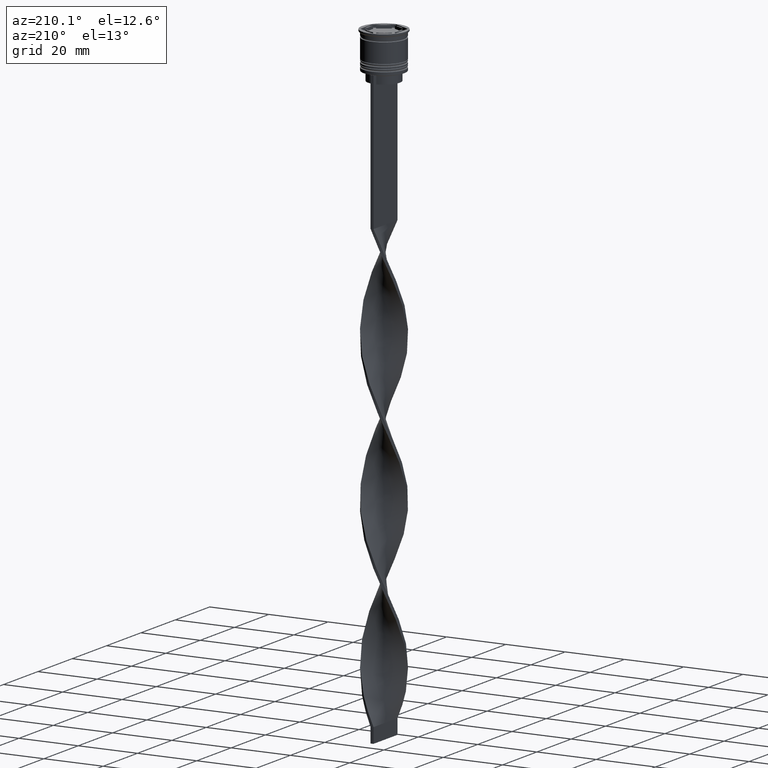
[diagram: clean part render]
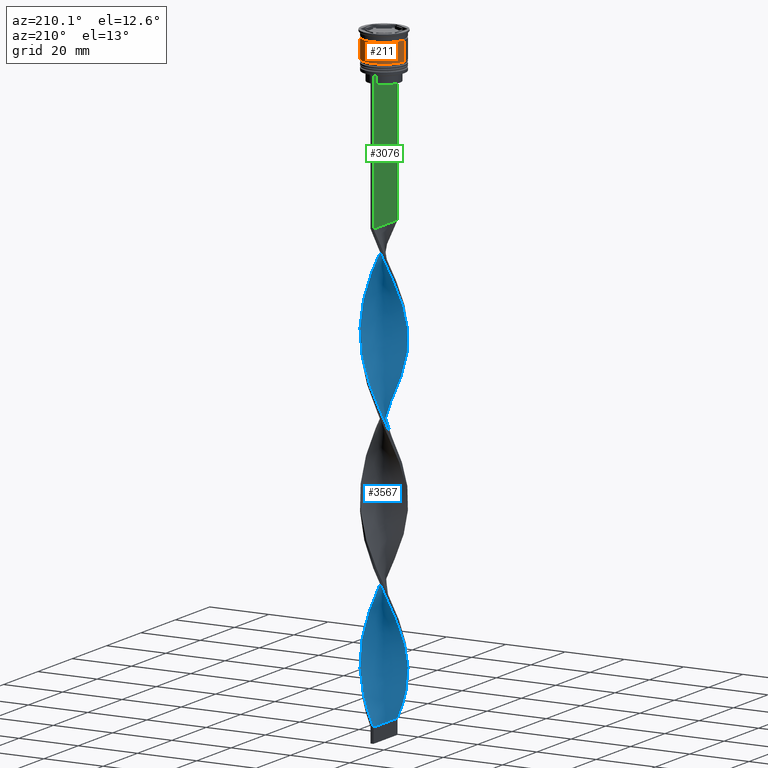
[diagram: same view with three faces highlighted in distinct colors, each labeled with its STEP entity id]
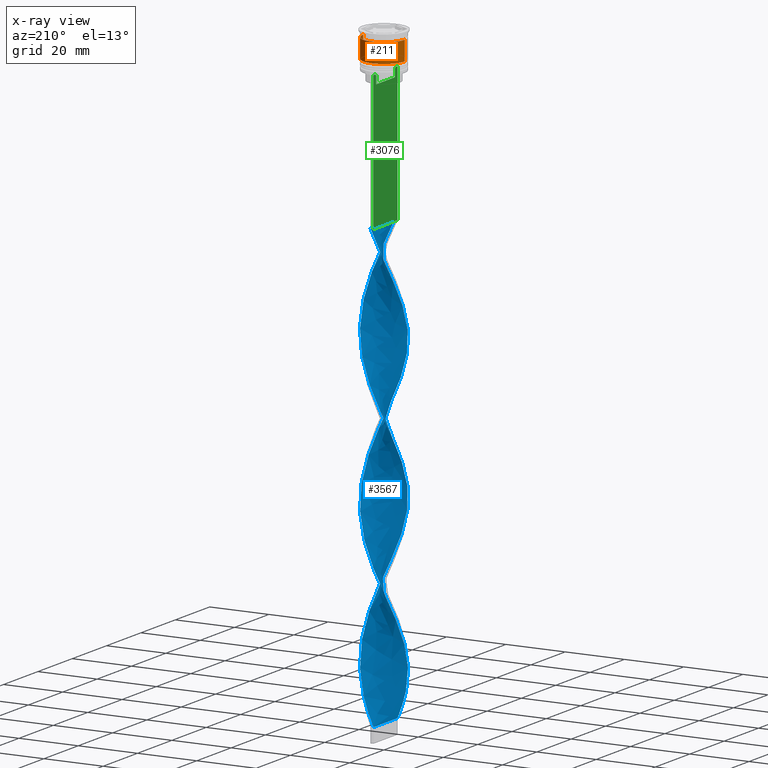
[diagram: x-ray of the same camera — body ghosted, the three highlighted faces saturated]
A machine part, auxiliary view with three faces highlighted in distinct colors.
The next image is the same camera in x-ray (body ghosted, the three faces saturated) — at least one of them is partly hidden behind the body in this view.
Their STEP definitions:

[orange] entity #211 — the highlighted cylindrical surface (edge-blend (fillet) strip) has radius 7 mm, axis along (-0, -0, 1).
#211 = ADVANCED_FACE ( 'NONE', ( #859 ), #3281, .T. ) ;
#247 = CARTESIAN_POINT ( 'NONE',  ( 0.000000000000000000, 0.000000000000000000, -2.500000000000000444 ) ) ;
#435 = DIRECTION ( 'NONE',  ( 1.000000000000000000, 0.000000000000000000, 0.000000000000000000 ) ) ;
#443 = AXIS2_PLACEMENT_3D ( 'NONE', #1242, #603, #2049 ) ;
#476 = VERTEX_POINT ( 'NONE', #1860 ) ;
#504 = EDGE_LOOP ( 'NONE', ( #1399, #1229, #3604, #1984 ) ) ;
#603 = DIRECTION ( 'NONE',  ( -0.000000000000000000, -0.000000000000000000, 1.000000000000000000 ) ) ;
#809 = VERTEX_POINT ( 'NONE', #3142 ) ;
#859 = FACE_OUTER_BOUND ( 'NONE', #504, .T. ) ;
#889 = DIRECTION ( 'NONE',  ( 1.000000000000000000, 0.000000000000000000, 0.000000000000000000 ) ) ;
#907 = CARTESIAN_POINT ( 'NONE',  ( -6.999999999999999112, 8.572527594031472204E-16, 0.000000000000000000 ) ) ;
#908 = EDGE_CURVE ( 'NONE', #1291, #809, #2010, .T. ) ;
#1060 = VERTEX_POINT ( 'NONE', #1191 ) ;
#1191 = CARTESIAN_POINT ( 'NONE',  ( 7.000000000000000888, 0.000000000000000000, -9.000000000000001776 ) ) ;
#1229 = ORIENTED_EDGE ( 'NONE', *, *, #2793, .T. ) ;
#1242 = CARTESIAN_POINT ( 'NONE',  ( 0.000000000000000000, 0.000000000000000000, 0.000000000000000000 ) ) ;
#1291 = VERTEX_POINT ( 'NONE', #2114 ) ;
#1399 = ORIENTED_EDGE ( 'NONE', *, *, #2508, .T. ) ;
#1465 = AXIS2_PLACEMENT_3D ( 'NONE', #3380, #2459, #435 ) ;
#1757 = CARTESIAN_POINT ( 'NONE',  ( 6.999999999999999112, 0.000000000000000000, 0.000000000000000000 ) ) ;
#1774 = VECTOR ( 'NONE', #3834, 1000.000000000000000 ) ;
#1860 = CARTESIAN_POINT ( 'NONE',  ( -7.000000000000000888, 8.572527594031474176E-16, -9.000000000000001776 ) ) ;
#1984 = ORIENTED_EDGE ( 'NONE', *, *, #3855, .F. ) ;
#2010 = CIRCLE ( 'NONE', #2326, 6.999999999999997335 ) ;
#2049 = DIRECTION ( 'NONE',  ( 1.000000000000000000, 0.000000000000000000, 0.000000000000000000 ) ) ;
#2114 = CARTESIAN_POINT ( 'NONE',  ( 6.999999999999997335, 0.000000000000000000, -2.500000000000000444 ) ) ;
#2283 = CIRCLE ( 'NONE', #1465, 7.000000000000000888 ) ;
#2326 = AXIS2_PLACEMENT_3D ( 'NONE', #247, #2389, #889 ) ;
#2389 = DIRECTION ( 'NONE',  ( -0.000000000000000000, -0.000000000000000000, 1.000000000000000000 ) ) ;
#2404 = LINE ( 'NONE', #907, #3531 ) ;
#2459 = DIRECTION ( 'NONE',  ( -0.000000000000000000, -0.000000000000000000, 1.000000000000000000 ) ) ;
#2508 = EDGE_CURVE ( 'NONE', #1060, #476, #2283, .T. ) ;
#2793 = EDGE_CURVE ( 'NONE', #476, #809, #2404, .T. ) ;
#3008 = LINE ( 'NONE', #1757, #1774 ) ;
#3142 = CARTESIAN_POINT ( 'NONE',  ( -6.999999999999997335, 8.572527594031471218E-16, -2.500000000000000444 ) ) ;
#3281 = CYLINDRICAL_SURFACE ( 'NONE', #443, 6.999999999999999112 ) ;
#3380 = CARTESIAN_POINT ( 'NONE',  ( 0.000000000000000000, 0.000000000000000000, -9.000000000000001776 ) ) ;
#3531 = VECTOR ( 'NONE', #3605, 1000.000000000000000 ) ;
#3604 = ORIENTED_EDGE ( 'NONE', *, *, #908, .F. ) ;
#3605 = DIRECTION ( 'NONE',  ( -0.000000000000000000, -0.000000000000000000, 1.000000000000000000 ) ) ;
#3834 = DIRECTION ( 'NONE',  ( -0.000000000000000000, -0.000000000000000000, 1.000000000000000000 ) ) ;
#3855 = EDGE_CURVE ( 'NONE', #1060, #1291, #3008, .T. ) ;

[blue] entity #3567 — the highlighted face is a freeform B-spline surface patch.
#1 = CARTESIAN_POINT ( 'NONE',  ( 7.016273413796890068, -0.1480114280955966977, -81.87254901960783116 ) ) ;
#2 = CARTESIAN_POINT ( 'NONE',  ( 6.595948007173689120, 2.396553752090988976, -87.71568627450979250 ) ) ;
#27 = CARTESIAN_POINT ( 'NONE',  ( 4.637232685409776067, -5.307443892742482738, -68.72549019607842524 ) ) ;
#47 = CARTESIAN_POINT ( 'NONE',  ( -5.533515242862683259, 4.364985304700184088, -121.3137254901960773 ) ) ;
#48 = CARTESIAN_POINT ( 'NONE',  ( 1.440874626053875396, 6.899041090270179311, -203.1176470588235361 ) ) ;
#64 = CARTESIAN_POINT ( 'NONE',  ( -6.924005054333592923, 1.143745604390631554, -81.87254901960783116 ) ) ;
#70 = CARTESIAN_POINT ( 'NONE',  ( 6.736663859307483904, -2.071291312187310663, -77.49019607843136725 ) ) ;
#71 = CARTESIAN_POINT ( 'NONE',  ( -0.1486455236942079983, -7.046331823121014359, -156.3725490196078454 ) ) ;
#86 = CARTESIAN_POINT ( 'NONE',  ( 3.259916572276685187, -6.214736031545978534, -116.9313725490195992 ) ) ;
#92 = CARTESIAN_POINT ( 'NONE',  ( -1.440874626053876062, -6.899041090270178422, -153.4509803921568789 ) ) ;
#94 = CARTESIAN_POINT ( 'NONE',  ( -6.924005054333588483, -1.143745604390627779, -134.4607843137254974 ) ) ;
#105 = CARTESIAN_POINT ( 'NONE',  ( -6.869610997245777284, -1.434728108918171596, -87.71568627450979250 ) ) ;
#110 = CARTESIAN_POINT ( 'NONE',  ( 5.712673125104408278, 4.127741927368045793, -191.4313725490196134 ) ) ;
#119 = CARTESIAN_POINT ( 'NONE',  ( -3.583034730602821405, -6.069163844594760882, -100.8627450980392126 ) ) ;
#125 = CARTESIAN_POINT ( 'NONE',  ( 5.887437909151302939, -3.819433841014673536, -172.4411764705882035 ) ) ;
#135 = EDGE_CURVE ( 'NONE', #1436, #1931, #3480, .T. ) ;
#139 = CARTESIAN_POINT ( 'NONE',  ( 3.835796673391457023, -5.912660275514004304, -118.3921568627451109 ) ) ;
#144 = CARTESIAN_POINT ( 'NONE',  ( 5.712673125104408278, 4.127741927368044905, -191.4313725490196134 ) ) ;
#150 = CARTESIAN_POINT ( 'NONE',  ( -2.994927778012249409, -6.346684772736916891, -102.3235294117646959 ) ) ;
#160 = CARTESIAN_POINT ( 'NONE',  ( 4.346365046915569685, 5.509910242367890731, -195.8137254901960773 ) ) ;
#165 = CARTESIAN_POINT ( 'NONE',  ( 7.002558135184068000, 0.7981649056490325300, -135.9215686274509665 ) ) ;
#173 = CARTESIAN_POINT ( 'NONE',  ( -5.712673125104412719, 4.127741927368047570, -173.9019607843137294 ) ) ;
#180 = CARTESIAN_POINT ( 'NONE',  ( 6.373874598089927623, -3.007758344858554977, -127.1568627450980102 ) ) ;
#191 = CARTESIAN_POINT ( 'NONE',  ( -6.373874598089927623, 3.007758344858555866, -176.8235294117647243 ) ) ;
#201 = CARTESIAN_POINT ( 'NONE',  ( 5.085373964136231884, 4.836214598721338298, -146.1470588235294201 ) ) ;
#212 = CARTESIAN_POINT ( 'NONE',  ( -5.533515242862685923, -4.364985304700188529, -194.3529411764705799 ) ) ;
#221 = CARTESIAN_POINT ( 'NONE',  ( 0.7947600748740405452, -6.972686456695599944, -111.0882352941176379 ) ) ;
#237 = CARTESIAN_POINT ( 'NONE',  ( 1.777733174557942775, -6.788936938879025718, -61.42156862745097357 ) ) ;
#263 = CARTESIAN_POINT ( 'NONE',  ( 5.085373964136229219, -4.836214598721332969, -70.18627450980390847 ) ) ;
#280 = CARTESIAN_POINT ( 'NONE',  ( 6.924005054333588483, 1.143745604390630222, -84.79411764705882604 ) ) ;
#281 = CARTESIAN_POINT ( 'NONE',  ( 1.148645523694208137, -6.953668176878982088, -59.96078431372549744 ) ) ;
#298 = CARTESIAN_POINT ( 'NONE',  ( 6.595948007173689120, 2.396553752090988976, -87.71568627450979250 ) ) ;
#299 = CARTESIAN_POINT ( 'NONE',  ( -4.637232685409779620, -5.307443892742487179, -197.2745098039215463 ) ) ;
#323 = CARTESIAN_POINT ( 'NONE',  ( 2.406820825421677412, -6.624205700879067571, -62.88235294117647101 ) ) ;
#324 = CARTESIAN_POINT ( 'NONE',  ( -2.994927778012248520, 6.346684772736911562, -114.0098039215686185 ) ) ;
#345 = CARTESIAN_POINT ( 'NONE',  ( 6.373874598089922294, 3.007758344858553201, -89.17647058823528994 ) ) ;
#346 = CARTESIAN_POINT ( 'NONE',  ( 2.684036471161911575, 6.516811787577952764, -200.1960784313725981 ) ) ;
#360 = CARTESIAN_POINT ( 'NONE',  ( -4.637232685409778732, -5.307443892742487179, -97.94117647058824616 ) ) ;
#365 = CARTESIAN_POINT ( 'NONE',  ( -3.583034730602817408, 6.069163844594756441, -115.4705882352941018 ) ) ;
#366 = CARTESIAN_POINT ( 'NONE',  ( -6.869610997245771955, 1.434728108918171596, -128.6176470588235361 ) ) ;
#379 = CARTESIAN_POINT ( 'NONE',  ( -1.440874626053875174, 6.899041090270183751, -62.88235294117647101 ) ) ;
#388 = CARTESIAN_POINT ( 'NONE',  ( 4.856933420439684568, 5.107160209221783376, -194.3529411764705799 ) ) ;
#394 = CARTESIAN_POINT ( 'NONE',  ( -6.043273861597169727, 3.567750136113300385, -76.02941176470586981 ) ) ;
#403 = CARTESIAN_POINT ( 'NONE',  ( 1.440874626053875174, -6.899041090270183751, -112.5490196078431495 ) ) ;
#408 = CARTESIAN_POINT ( 'NONE',  ( 3.583034730602818296, -6.069163844594756441, -165.1372549019608016 ) ) ;
#409 = CARTESIAN_POINT ( 'NONE',  ( -2.062455548607892375, -6.707926438924064705, -151.9901960784313530 ) ) ;
#420 = CARTESIAN_POINT ( 'NONE',  ( -3.835796673391458800, 5.912660275514003416, -68.72549019607842524 ) ) ;
#426 = CARTESIAN_POINT ( 'NONE',  ( -3.259916572276685187, -6.214736031545972317, -149.0686274509803866 ) ) ;
#427 = CARTESIAN_POINT ( 'NONE',  ( 6.736663859307483904, -2.071291312187310663, -176.8235294117647243 ) ) ;
#438 = CARTESIAN_POINT ( 'NONE',  ( -4.346365046915572350, 5.509910242367894284, -70.18627450980390847 ) ) ;
#444 = CARTESIAN_POINT ( 'NONE',  ( 5.284803272772047755, 4.617451068294911920, -192.8921568627450824 ) ) ;
#450 = CARTESIAN_POINT ( 'NONE',  ( 4.346365046915572350, -5.509910242367894284, -119.8529411764705799 ) ) ;
#460 = CARTESIAN_POINT ( 'NONE',  ( -2.994927778012249409, -6.346684772736916891, -201.6568627450980387 ) ) ;
#470 = CARTESIAN_POINT ( 'NONE',  ( -7.029988692409723683, 0.5021420494578376914, -83.33333333333332860 ) ) ;
#484 = CARTESIAN_POINT ( 'NONE',  ( -6.924005054333592923, 1.143745604390631554, -81.87254901960783116 ) ) ;
#492 = CARTESIAN_POINT ( 'NONE',  ( -5.887437909151307380, -3.819433841014676201, -192.8921568627450824 ) ) ;
#502 = CARTESIAN_POINT ( 'NONE',  ( 2.684036471161912019, -6.516811787577958981, -115.4705882352940876 ) ) ;
#516 = VECTOR ( 'NONE', #853, 1000.000000000000000 ) ;
#521 = CARTESIAN_POINT ( 'NONE',  ( 4.637232685409780508, 5.307443892742486291, -147.6078431372548891 ) ) ;
#530 = CARTESIAN_POINT ( 'NONE',  ( -6.489012217373707259, -2.672586844758237490, -189.9705882352941160 ) ) ;
#540 = CARTESIAN_POINT ( 'NONE',  ( -4.110133708006297404, 5.688303868668618257, -116.9313725490195992 ) ) ;
#557 = CARTESIAN_POINT ( 'NONE',  ( -6.595948007173694450, 2.396553752090989864, -178.2843137254901933 ) ) ;
#577 = CARTESIAN_POINT ( 'NONE',  ( 2.062455548607891487, 6.707926438924064705, -102.3235294117646959 ) ) ;
#578 = CARTESIAN_POINT ( 'NONE',  ( 6.373874598089922294, 3.007758344858553201, -89.17647058823527573 ) ) ;
#595 = CARTESIAN_POINT ( 'NONE',  ( -6.924005054333588483, -1.143745604390627779, -134.4607843137254974 ) ) ;
#596 = CARTESIAN_POINT ( 'NONE',  ( -5.085373964136233660, -4.836214598721335634, -195.8137254901960773 ) ) ;
#615 = CARTESIAN_POINT ( 'NONE',  ( 5.887437909151302939, -3.819433841014673536, -73.10784313725488914 ) ) ;
#616 = CARTESIAN_POINT ( 'NONE',  ( -1.148645523694208581, 6.953668176878982088, -109.6274509803921546 ) ) ;
#641 = CARTESIAN_POINT ( 'NONE',  ( -2.994927778012248520, 6.346684772736911562, -114.0098039215686185 ) ) ;
#642 = CARTESIAN_POINT ( 'NONE',  ( 4.346365046915569685, 5.509910242367890731, -195.8137254901960773 ) ) ;
#665 = CARTESIAN_POINT ( 'NONE',  ( 4.856933420439684568, 5.107160209221783376, -95.01960784313726549 ) ) ;
#678 = CARTESIAN_POINT ( 'NONE',  ( 5.533515242862685035, 4.364985304700190305, -144.6862745098039227 ) ) ;
#682 = CARTESIAN_POINT ( 'NONE',  ( 5.085373964136229219, -4.836214598721332969, -169.5196078431372371 ) ) ;
#683 = CARTESIAN_POINT ( 'NONE',  ( -4.637232685409775179, 5.307443892742484515, -118.3921568627451109 ) ) ;
#686 = CARTESIAN_POINT ( 'NONE',  ( -1.440874626053875396, 6.899041090270183751, -62.88235294117647811 ) ) ;
#693 = CARTESIAN_POINT ( 'NONE',  ( -1.777733174557944107, -6.788936938879031047, -105.2450980392156765 ) ) ;
#699 = CARTESIAN_POINT ( 'NONE',  ( 5.887437909151302939, -3.819433841014673536, -172.4411764705882035 ) ) ;
#700 = CARTESIAN_POINT ( 'NONE',  ( 6.869610997245771955, -1.434728108918169154, -178.2843137254901933 ) ) ;
#711 = CARTESIAN_POINT ( 'NONE',  ( 7.002558135184068888, 0.7981649056490325300, -135.9215686274509665 ) ) ;
#717 = CARTESIAN_POINT ( 'NONE',  ( 5.533515242862682371, -4.364985304700184976, -170.9803921568627629 ) ) ;
#718 = CARTESIAN_POINT ( 'NONE',  ( -4.856933420439682791, -5.107160209221785152, -144.6862745098039227 ) ) ;
#721 = CARTESIAN_POINT ( 'NONE',  ( -6.373874598089927623, 3.007758344858555866, -77.49019607843138147 ) ) ;
#726 = CARTESIAN_POINT ( 'NONE',  ( -7.029988692409724571, 0.5021420494578376914, -83.33333333333332860 ) ) ;
#743 = CARTESIAN_POINT ( 'NONE',  ( -5.085373964136233660, -4.836214598721335634, -195.8137254901960773 ) ) ;
#749 = CARTESIAN_POINT ( 'NONE',  ( -0.1486455236942079983, -7.046331823121014359, -156.3725490196078454 ) ) ;
#756 = CARTESIAN_POINT ( 'NONE',  ( -2.062455548607893263, 6.707926438924069146, -163.6764705882352757 ) ) ;
#765 = CARTESIAN_POINT ( 'NONE',  ( -1.777733174557944107, -6.788936938879031047, -204.5784313725490335 ) ) ;
#774 = CARTESIAN_POINT ( 'NONE',  ( 2.406820825421681409, 6.624205700879070235, -153.4509803921568789 ) ) ;
#782 = CARTESIAN_POINT ( 'NONE',  ( -2.062455548607893263, 6.707926438924069146, -163.6764705882352757 ) ) ;
#790 = CARTESIAN_POINT ( 'NONE',  ( -0.1486455236942086366, 7.046331823121017912, -159.2941176470588118 ) ) ;
#797 = CARTESIAN_POINT ( 'NONE',  ( -5.284803272772050420, 4.617451068294916361, -172.4411764705882035 ) ) ;
#806 = CARTESIAN_POINT ( 'NONE',  ( 3.835796673391457468, -5.912660275514004304, -118.3921568627451109 ) ) ;
#829 = CARTESIAN_POINT ( 'NONE',  ( -6.736663859307489233, -2.071291312187311551, -188.5098039215686185 ) ) ;
#849 = CARTESIAN_POINT ( 'NONE',  ( -5.533515242862685035, -4.364985304700188529, -194.3529411764705799 ) ) ;
#853 = DIRECTION ( 'NONE',  ( 0.000000000000000000, 1.000000000000000000, 0.000000000000000000 ) ) ;
#865 = CARTESIAN_POINT ( 'NONE',  ( 5.533515242862682371, -4.364985304700184976, -71.64705882352943433 ) ) ;
#883 = CARTESIAN_POINT ( 'NONE',  ( 4.110133708006296516, -5.688303868668619145, -67.26470588235292780 ) ) ;
#884 = CARTESIAN_POINT ( 'NONE',  ( -1.148645523694207693, -6.953668176878989193, -206.0392156862745026 ) ) ;
#909 = CARTESIAN_POINT ( 'NONE',  ( -6.241360575439922620, 3.273882377329164317, -124.2352941176470580 ) ) ;
#910 = CARTESIAN_POINT ( 'NONE',  ( -7.016273413796896286, -0.1480114280955961703, -184.1274509803921546 ) ) ;
#931 = CARTESIAN_POINT ( 'NONE',  ( 6.241360575439923508, -3.273882377329162985, -74.56862745098038658 ) ) ;
#932 = CARTESIAN_POINT ( 'NONE',  ( -5.284803272772048643, -4.617451068294911032, -143.2254901960784537 ) ) ;
#956 = CARTESIAN_POINT ( 'NONE',  ( 6.489012217373702818, -2.672586844758235713, -76.02941176470586981 ) ) ;
#958 = CARTESIAN_POINT ( 'NONE',  ( -6.043273861597164398, -3.567750136113299941, -140.3039215686274588 ) ) ;
#971 = CARTESIAN_POINT ( 'NONE',  ( -6.373874598089927623, 3.007758344858555866, -77.49019607843136725 ) ) ;
#978 = CARTESIAN_POINT ( 'NONE',  ( 6.043273861597165286, 3.567750136113297277, -90.63725490196078738 ) ) ;
#979 = CARTESIAN_POINT ( 'NONE',  ( 6.489012217373702818, -2.672586844758235713, -175.3627450980391984 ) ) ;
#991 = CARTESIAN_POINT ( 'NONE',  ( 6.736663859307490121, 2.071291312187309774, -138.8431372549019329 ) ) ;
#996 = CARTESIAN_POINT ( 'NONE',  ( 6.736663859307483904, -2.071291312187310663, -176.8235294117647243 ) ) ;
#997 = CARTESIAN_POINT ( 'NONE',  ( 3.835796673391455691, 5.912660275513999864, -197.2745098039215463 ) ) ;
#1010 = CARTESIAN_POINT ( 'NONE',  ( 7.016273413796896286, 0.1480114280955937833, -134.4607843137254974 ) ) ;
#1016 = CARTESIAN_POINT ( 'NONE',  ( -4.856933420439682791, -5.107160209221785152, -144.6862745098039227 ) ) ;
#1017 = CARTESIAN_POINT ( 'NONE',  ( 4.110133708006296516, -5.688303868668619145, -166.5980392156862706 ) ) ;
#1030 = CARTESIAN_POINT ( 'NONE',  ( 2.062455548607894595, -6.707926438924068258, -114.0098039215686185 ) ) ;
#1036 = CARTESIAN_POINT ( 'NONE',  ( -0.7947600748740389909, -6.972686456695594615, -154.9117647058823479 ) ) ;
#1041 = CARTESIAN_POINT ( 'NONE',  ( -3.259916572276684299, 6.214736031545979422, -67.26470588235292780 ) ) ;
#1046 = CARTESIAN_POINT ( 'NONE',  ( -6.818021416257463940, 1.785349159323425861, -80.41176470588234793 ) ) ;
#1050 = CARTESIAN_POINT ( 'NONE',  ( 0.1486455236942071378, 7.046331823121014359, -206.0392156862745026 ) ) ;
#1054 = CARTESIAN_POINT ( 'NONE',  ( -4.110133708006299180, -5.688303868668623586, -99.40196078431372939 ) ) ;
#1062 = CARTESIAN_POINT ( 'NONE',  ( 0.5000000000000000000, 7.000000000000002665, -157.8333333333333144 ) ) ;
#1074 = CARTESIAN_POINT ( 'NONE',  ( 6.595948007173694450, -2.396553752090992084, -128.6176470588235361 ) ) ;
#1094 = CARTESIAN_POINT ( 'NONE',  ( 6.241360575439927061, 3.273882377329165205, -141.7647058823529562 ) ) ;
#1102 = CARTESIAN_POINT ( 'NONE',  ( 1.777733174557941886, 6.788936938879031047, -154.9117647058823479 ) ) ;
#1109 = CARTESIAN_POINT ( 'NONE',  ( -0.7947600748740419885, 6.972686456695599944, -160.7549019607842808 ) ) ;
#1120 = CARTESIAN_POINT ( 'NONE',  ( 2.994927778012250297, 6.346684772736916891, -151.9901960784313530 ) ) ;
#1130 = CARTESIAN_POINT ( 'NONE',  ( 2.062455548607894595, -6.707926438924068258, -114.0098039215686185 ) ) ;
#1142 = CARTESIAN_POINT ( 'NONE',  ( -6.818021416257463940, 1.785349159323425861, -179.7450980392157476 ) ) ;
#1151 = CARTESIAN_POINT ( 'NONE',  ( -2.406820825421680965, -6.624205700879071124, -203.1176470588235361 ) ) ;
#1168 = CARTESIAN_POINT ( 'NONE',  ( -7.002558135184068000, -0.7981649056490316418, -185.5882352941176237 ) ) ;
#1184 = CARTESIAN_POINT ( 'NONE',  ( -4.110133708006297404, 5.688303868668618257, -116.9313725490195992 ) ) ;
#1185 = CARTESIAN_POINT ( 'NONE',  ( -6.869610997245777284, -1.434728108918171596, -187.0490196078431211 ) ) ;
#1211 = CARTESIAN_POINT ( 'NONE',  ( -6.489012217373703706, 2.672586844758233937, -125.6960784313725412 ) ) ;
#1212 = CARTESIAN_POINT ( 'NONE',  ( 6.043273861597165286, 3.567750136113297277, -90.63725490196078738 ) ) ;
#1232 = CARTESIAN_POINT ( 'NONE',  ( 0.7947600748740411003, 6.972686456695594615, -105.2450980392156765 ) ) ;
#1233 = CARTESIAN_POINT ( 'NONE',  ( -2.994927778012249409, -6.346684772736916891, -201.6568627450980387 ) ) ;
#1252 = CARTESIAN_POINT ( 'NONE',  ( -6.043273861597164398, -3.567750136113299941, -140.3039215686274588 ) ) ;
#1253 = CARTESIAN_POINT ( 'NONE',  ( 0.7947600748740411003, 6.972686456695594615, -204.5784313725490335 ) ) ;
#1271 = CARTESIAN_POINT ( 'NONE',  ( 6.595948007173694450, -2.396553752090992084, -128.6176470588235361 ) ) ;
#1277 = CARTESIAN_POINT ( 'NONE',  ( 5.284803272772047755, 4.617451068294911920, -93.55882352941176805 ) ) ;
#1278 = CARTESIAN_POINT ( 'NONE',  ( 1.777733174557942775, -6.788936938879025718, -160.7549019607842808 ) ) ;
#1283 = CARTESIAN_POINT ( 'NONE',  ( 0.5000000000000000000, 7.000000000000002665, -58.50000000000000000 ) ) ;
#1293 = CARTESIAN_POINT ( 'NONE',  ( 6.373874598089927623, -3.007758344858554977, -127.1568627450980244 ) ) ;
#1297 = CARTESIAN_POINT ( 'NONE',  ( 4.637232685409776067, -5.307443892742482738, -168.0588235294117680 ) ) ;
#1298 = CARTESIAN_POINT ( 'NONE',  ( -5.712673125104408278, -4.127741927368044905, -141.7647058823529562 ) ) ;
#1300 = EDGE_CURVE ( 'NONE', #2656, #2933, #1736, .T. ) ;
#1308 = CARTESIAN_POINT ( 'NONE',  ( -0.5000000000000008882, -7.000000000000002665, -108.1666666666666572 ) ) ;
#1313 = CARTESIAN_POINT ( 'NONE',  ( 5.284803272772047755, 4.617451068294911920, -192.8921568627450824 ) ) ;
#1317 = CARTESIAN_POINT ( 'NONE',  ( -4.856933420439688120, 5.107160209221786928, -71.64705882352943433 ) ) ;
#1326 = CARTESIAN_POINT ( 'NONE',  ( -0.7947600748740419885, 6.972686456695599944, -61.42156862745097357 ) ) ;
#1332 = CARTESIAN_POINT ( 'NONE',  ( 3.259916572276681634, 6.214736031545974981, -198.7352941176470722 ) ) ;
#1333 = CARTESIAN_POINT ( 'NONE',  ( -6.595948007173689120, -2.396553752090988088, -137.3823529411764639 ) ) ;
#1345 = CARTESIAN_POINT ( 'NONE',  ( 4.346365046915572350, -5.509910242367894284, -119.8529411764705799 ) ) ;
#1354 = CARTESIAN_POINT ( 'NONE',  ( -5.712673125104412719, 4.127741927368047570, -173.9019607843137294 ) ) ;
#1366 = CARTESIAN_POINT ( 'NONE',  ( 3.835796673391455247, 5.912660275513998975, -197.2745098039215463 ) ) ;
#1370 = CARTESIAN_POINT ( 'NONE',  ( 5.887437909151308268, 3.819433841014675313, -143.2254901960784537 ) ) ;
#1378 = CARTESIAN_POINT ( 'NONE',  ( -0.1486455236942086366, 7.046331823121017912, -159.2941176470588118 ) ) ;
#1390 = CARTESIAN_POINT ( 'NONE',  ( -3.583034730602820961, -6.069163844594760882, -100.8627450980392126 ) ) ;
#1402 = CARTESIAN_POINT ( 'NONE',  ( -6.241360575439927949, -3.273882377329165649, -191.4313725490196134 ) ) ;
#1412 = CARTESIAN_POINT ( 'NONE',  ( 1.148645523694208581, 6.953668176878989193, -156.3725490196078454 ) ) ;
#1426 = CARTESIAN_POINT ( 'NONE',  ( 1.777733174557941886, 6.788936938879031047, -154.9117647058823479 ) ) ;
#1436 = VERTEX_POINT ( 'NONE', #2669 ) ;
#1437 = CARTESIAN_POINT ( 'NONE',  ( -4.856933420439688120, 5.107160209221786928, -170.9803921568627629 ) ) ;
#1448 = CARTESIAN_POINT ( 'NONE',  ( -6.373874598089927623, 3.007758344858555866, -176.8235294117647243 ) ) ;
#1470 = CARTESIAN_POINT ( 'NONE',  ( -6.043273861597169727, 3.567750136113300385, -175.3627450980391984 ) ) ;
#1483 = CARTESIAN_POINT ( 'NONE',  ( -6.736663859307483904, 2.071291312187310663, -127.1568627450980244 ) ) ;
#1484 = CARTESIAN_POINT ( 'NONE',  ( -6.241360575439927061, -3.273882377329165649, -191.4313725490196134 ) ) ;
#1502 = CARTESIAN_POINT ( 'NONE',  ( 7.029988692409719242, 0.5021420494578368032, -83.33333333333332860 ) ) ;
#1503 = CARTESIAN_POINT ( 'NONE',  ( 7.002558135184062671, -0.7981649056490300875, -80.41176470588234793 ) ) ;
#1532 = CARTESIAN_POINT ( 'NONE',  ( 6.818021416257458611, 1.785349159323425638, -86.25490196078432348 ) ) ;
#1533 = CARTESIAN_POINT ( 'NONE',  ( -3.583034730602816964, 6.069163844594756441, -115.4705882352940876 ) ) ;
#1554 = CARTESIAN_POINT ( 'NONE',  ( -7.016273413796890956, 0.1480114280955958372, -131.5392156862745310 ) ) ;
#1555 = CARTESIAN_POINT ( 'NONE',  ( 3.583034730602817852, -6.069163844594756441, -165.1372549019608016 ) ) ;
#1571 = CARTESIAN_POINT ( 'NONE',  ( -4.110133708006299180, -5.688303868668623586, -99.40196078431372939 ) ) ;
#1577 = CARTESIAN_POINT ( 'NONE',  ( -5.085373964136229219, 4.836214598721332969, -119.8529411764705799 ) ) ;
#1578 = CARTESIAN_POINT ( 'NONE',  ( -4.346365046915567909, -5.509910242367891620, -146.1470588235294201 ) ) ;
#1593 = CARTESIAN_POINT ( 'NONE',  ( -2.684036471161912907, 6.516811787577958981, -65.80392156862745878 ) ) ;
#1599 = CARTESIAN_POINT ( 'NONE',  ( 6.924005054333588483, 1.143745604390630222, -184.1274509803921546 ) ) ;
#1600 = CARTESIAN_POINT ( 'NONE',  ( -7.029988692409719242, -0.5021420494578359150, -133.0000000000000000 ) ) ;
#1605 = CARTESIAN_POINT ( 'NONE',  ( -6.595948007173694450, 2.396553752090989864, -78.95098039215686470 ) ) ;
#1613 = CARTESIAN_POINT ( 'NONE',  ( -5.712673125104412719, 4.127741927368047570, -74.56862745098038658 ) ) ;
#1618 = CARTESIAN_POINT ( 'NONE',  ( 1.440874626053875174, 6.899041090270179311, -203.1176470588235361 ) ) ;
#1620 = CARTESIAN_POINT ( 'NONE',  ( 2.406820825421677412, -6.624205700879066683, -162.2156862745098351 ) ) ;
#1624 = CARTESIAN_POINT ( 'NONE',  ( -2.062455548607893263, 6.707926438924069146, -64.34313725490196134 ) ) ;
#1630 = CARTESIAN_POINT ( 'NONE',  ( -0.1486455236942086366, 7.046331823121017912, -59.96078431372549034 ) ) ;
#1635 = CARTESIAN_POINT ( 'NONE',  ( 6.818021416257458611, 1.785349159323425638, -185.5882352941176237 ) ) ;
#1645 = CARTESIAN_POINT ( 'NONE',  ( -6.736663859307489233, -2.071291312187311551, -89.17647058823528994 ) ) ;
#1651 = CARTESIAN_POINT ( 'NONE',  ( 1.148645523694208137, -6.953668176878982088, -159.2941176470588118 ) ) ;
#1656 = CARTESIAN_POINT ( 'NONE',  ( -5.284803272772050420, 4.617451068294916361, -172.4411764705882035 ) ) ;
#1673 = CARTESIAN_POINT ( 'NONE',  ( 5.284803272772050420, -4.617451068294917249, -122.7745098039215605 ) ) ;
#1690 = CARTESIAN_POINT ( 'NONE',  ( -2.406820825421680965, -6.624205700879071124, -103.7843137254901933 ) ) ;
#1697 = CARTESIAN_POINT ( 'NONE',  ( -4.110133708006299180, -5.688303868668623586, -198.7352941176470722 ) ) ;
#1708 = CARTESIAN_POINT ( 'NONE',  ( 6.869610997245777284, 1.434728108918170708, -137.3823529411764639 ) ) ;
#1716 = CARTESIAN_POINT ( 'NONE',  ( -6.595948007173694450, 2.396553752090989864, -178.2843137254901933 ) ) ;
#1726 = CARTESIAN_POINT ( 'NONE',  ( -7.002558135184068000, -0.7981649056490316418, -86.25490196078432348 ) ) ;
#1727 = ORIENTED_EDGE ( 'NONE', *, *, #135, .F. ) ;
#1736 =( BOUNDED_CURVE ( )  B_SPLINE_CURVE ( 2, ( #3650, #2382, #3626, #323, #2671, #2095, #883, #3290, #3309, #2427, #615, #931, #956, #70, #3333, #2695, #1, #1502, #280, #1532, #298, #345, #978, #1804, #1277, #665, #1869, #2724, #1826, #2744, #577, #1786, #1232, #2133, #2974, #3059, #2159, #3874, #641, #365, #1184, #2469, #1577, #47, #3674, #909, #1211, #1483, #3042, #1849, #1554, #3606, #595, #3583, #2991, #2406, #1252, #2446, #1940, #1016, #1958, #3077, #426, #3098, #2490, #92, #1036, #749, #2250, #1651, #1925, #2544, #2816, #408, #3132, #1297, #682, #717, #699, #3688, #3151, #996, #3412, #2836, #3725, #2199, #1599, #2220, #3392, #3444, #2506, #144, #444, #3115, #160, #1366, #1332, #1909, #2784, #1618, #2557, #1050, #1886 ),
 .UNSPECIFIED., .F., .T. ) 
 B_SPLINE_CURVE_WITH_KNOTS ( ( 3, 2, 2, 2, 2, 2, 2, 2, 2, 2, 2, 2, 2, 2, 2, 2, 2, 2, 2, 2, 2, 2, 2, 2, 2, 2, 2, 2, 2, 2, 2, 2, 2, 2, 2, 2, 2, 2, 2, 2, 2, 2, 2, 2, 2, 2, 2, 2, 2, 2, 2, 3 ),
 ( 0.000000000000000000, 0.01470588235294117453, 0.02941176470588234906, 0.04411764705882353227, 0.05882352941176469813, 0.07352941176470588480, 0.08823529411764706454, 0.1029411764705882443, 0.1176470588235293963, 0.1323529411764705899, 0.1470588235294117696, 0.1617647058823529493, 0.1764705882352941291, 0.1911764705882352811, 0.2058823529411764885, 0.2205882352941176405, 0.2352941176470587925, 0.2500000000000000000, 0.2647058823529411797, 0.2794117647058823595, 0.2941176470588235392, 0.3088235294117647189, 0.3235294117647058987, 0.3382352941176470229, 0.3529411764705882582, 0.3676470588235294379, 0.3823529411764705621, 0.3970588235294117418, 0.4117647058823529771, 0.4264705882352941013, 0.4411764705882352811, 0.4558823529411764608, 0.4705882352941175850, 0.4852941176470588203, 0.5000000000000000000, 0.5147058823529411242, 0.5294117647058823595, 0.5441176470588234837, 0.5588235294117647189, 0.5735294117647058432, 0.5882352941176470784, 0.6029411764705882026, 0.6176470588235294379, 0.6323529411764705621, 0.6470588235294117974, 0.6617647058823529216, 0.6764705882352940458, 0.6911764705882351700, 0.7058823529411765163, 0.7205882352941176405, 0.7352941176470588758, 0.7500000000000000000 ),
 .UNSPECIFIED. ) 
 CURVE ( )  GEOMETRIC_REPRESENTATION_ITEM ( )  RATIONAL_B_SPLINE_CURVE ( ( 1.000000000000000000, 0.9957341762950344677, 1.000000000000000000, 0.9957341762950344677, 1.000000000000000000, 0.9957341762950344677, 1.000000000000000000, 0.9957341762950344677, 1.000000000000000000, 0.9957341762950344677, 1.000000000000000000, 0.9957341762950344677, 1.000000000000000000, 0.9957341762950344677, 1.000000000000000000, 0.9957341762950344677, 1.000000000000000000, 0.9957341762950344677, 1.000000000000000000, 0.9957341762950344677, 1.000000000000000000, 0.9957341762950344677, 1.000000000000000000, 0.9957341762950344677, 1.000000000000000000, 0.9957341762950344677, 1.000000000000000000, 0.9957341762950344677, 1.000000000000000000, 0.9957341762950344677, 1.000000000000000000, 0.9957341762950344677, 1.000000000000000000, 0.9957341762950344677, 1.000000000000000000, 0.9957341762950344677, 1.000000000000000000, 0.9957341762950344677, 1.000000000000000000, 0.9957341762950344677, 1.000000000000000000, 0.9957341762950344677, 1.000000000000000000, 0.9957341762950344677, 1.000000000000000000, 0.9957341762950344677, 1.000000000000000000, 0.9957341762950344677, 1.000000000000000000, 0.9957341762950344677, 1.000000000000000000, 0.9957341762950344677, 1.000000000000000000, 0.9957341762950344677, 1.000000000000000000, 0.9957341762950344677, 1.000000000000000000, 0.9957341762950344677, 1.000000000000000000, 0.9957341762950344677, 1.000000000000000000, 0.9957341762950344677, 1.000000000000000000, 0.9957341762950344677, 1.000000000000000000, 0.9957341762950344677, 1.000000000000000000, 0.9957341762950344677, 1.000000000000000000, 0.9957341762950344677, 1.000000000000000000, 0.9957341762950344677, 1.000000000000000000, 0.9957341762950344677, 1.000000000000000000, 0.9957341762950344677, 1.000000000000000000, 0.9957341762950344677, 1.000000000000000000, 0.9957341762950344677, 1.000000000000000000, 0.9957341762950344677, 1.000000000000000000, 0.9957341762950344677, 1.000000000000000000, 0.9957341762950344677, 1.000000000000000000, 0.9957341762950344677, 1.000000000000000000, 0.9957341762950344677, 1.000000000000000000, 0.9957341762950344677, 1.000000000000000000, 0.9957341762950344677, 1.000000000000000000, 0.9957341762950344677, 1.000000000000000000, 0.9957341762950344677, 1.000000000000000000, 0.9957341762950344677, 1.000000000000000000, 0.9957341762950344677, 1.000000000000000000 ) ) 
 REPRESENTATION_ITEM ( '' )  );
#1737 = CARTESIAN_POINT ( 'NONE',  ( -2.406820825421680521, -6.624205700879072012, -203.1176470588235361 ) ) ;
#1744 = CARTESIAN_POINT ( 'NONE',  ( 2.406820825421677412, -6.624205700879066683, -62.88235294117647811 ) ) ;
#1764 = CARTESIAN_POINT ( 'NONE',  ( 3.583034730602817852, -6.069163844594756441, -65.80392156862747299 ) ) ;
#1783 = CARTESIAN_POINT ( 'NONE',  ( -0.5000000000000008882, -7.000000000000002665, -207.5000000000000000 ) ) ;
#1786 = CARTESIAN_POINT ( 'NONE',  ( 1.440874626053875174, 6.899041090270179311, -103.7843137254901791 ) ) ;
#1787 = CARTESIAN_POINT ( 'NONE',  ( 0.5000000000000000000, -6.999999999999997335, -58.50000000000000000 ) ) ;
#1804 = CARTESIAN_POINT ( 'NONE',  ( 5.712673125104408278, 4.127741927368044905, -92.09803921568628482 ) ) ;
#1805 = CARTESIAN_POINT ( 'NONE',  ( 6.869610997245771955, -1.434728108918169154, -78.95098039215686470 ) ) ;
#1826 = CARTESIAN_POINT ( 'NONE',  ( 3.259916572276681634, 6.214736031545974981, -99.40196078431372939 ) ) ;
#1828 = CARTESIAN_POINT ( 'NONE',  ( -1.777733174557940998, 6.788936938879025718, -111.0882352941176379 ) ) ;
#1849 = CARTESIAN_POINT ( 'NONE',  ( -7.002558135184063559, 0.7981649056490275340, -130.0784313725490335 ) ) ;
#1851 = CARTESIAN_POINT ( 'NONE',  ( 3.259916572276681634, 6.214736031545974981, -198.7352941176470722 ) ) ;
#1865 = CARTESIAN_POINT ( 'NONE',  ( 5.284803272772050420, -4.617451068294917249, -122.7745098039215605 ) ) ;
#1869 = CARTESIAN_POINT ( 'NONE',  ( 4.346365046915569685, 5.509910242367890731, -96.48039215686274872 ) ) ;
#1886 = CARTESIAN_POINT ( 'NONE',  ( -0.4999999999999991673, 6.999999999999997335, -207.5000000000000000 ) ) ;
#1887 = CARTESIAN_POINT ( 'NONE',  ( 7.016273413796890068, -0.1480114280955966977, -181.2058823529411598 ) ) ;
#1902 = CARTESIAN_POINT ( 'NONE',  ( 6.924005054333593812, -1.143745604390631110, -131.5392156862745310 ) ) ;
#1903 = CARTESIAN_POINT ( 'NONE',  ( -0.4999999999999991673, 6.999999999999997335, -207.5000000000000000 ) ) ;
#1909 = CARTESIAN_POINT ( 'NONE',  ( 2.684036471161911575, 6.516811787577952764, -200.1960784313725696 ) ) ;
#1910 = CARTESIAN_POINT ( 'NONE',  ( 6.043273861597165286, 3.567750136113297277, -189.9705882352941160 ) ) ;
#1913 = CARTESIAN_POINT ( 'NONE',  ( -0.1486455236942086366, 7.046331823121017912, -59.96078431372549744 ) ) ;
#1921 = CARTESIAN_POINT ( 'NONE',  ( 6.869610997245777284, 1.434728108918170708, -137.3823529411764639 ) ) ;
#1925 = CARTESIAN_POINT ( 'NONE',  ( 1.777733174557942775, -6.788936938879025718, -160.7549019607842808 ) ) ;
#1926 = CARTESIAN_POINT ( 'NONE',  ( 5.085373964136229219, -4.836214598721332969, -169.5196078431372371 ) ) ;
#1931 = VERTEX_POINT ( 'NONE', #3882 ) ;
#1935 = CARTESIAN_POINT ( 'NONE',  ( -2.994927778012249409, -6.346684772736916891, -102.3235294117646959 ) ) ;
#1940 = CARTESIAN_POINT ( 'NONE',  ( -5.284803272772048643, -4.617451068294911032, -143.2254901960784537 ) ) ;
#1946 = CARTESIAN_POINT ( 'NONE',  ( 3.583034730602819184, 6.069163844594762658, -150.5294117647058840 ) ) ;
#1952 = CARTESIAN_POINT ( 'NONE',  ( -4.637232685409778732, -5.307443892742487179, -197.2745098039215463 ) ) ;
#1958 = CARTESIAN_POINT ( 'NONE',  ( -4.346365046915567909, -5.509910242367891620, -146.1470588235294201 ) ) ;
#1964 = CARTESIAN_POINT ( 'NONE',  ( -1.777733174557944107, -6.788936938879031047, -105.2450980392156765 ) ) ;
#1982 = CARTESIAN_POINT ( 'NONE',  ( -2.684036471161912907, 6.516811787577958981, -165.1372549019608016 ) ) ;
#1990 = CARTESIAN_POINT ( 'NONE',  ( -3.259916572276684299, 6.214736031545979422, -166.5980392156862706 ) ) ;
#1996 = CARTESIAN_POINT ( 'NONE',  ( -4.637232685409779620, -5.307443892742487179, -97.94117647058824616 ) ) ;
#2017 = CARTESIAN_POINT ( 'NONE',  ( -1.148645523694207693, -6.953668176878989193, -106.7058823529412024 ) ) ;
#2027 = ORIENTED_EDGE ( 'NONE', *, *, #2229, .F. ) ;
#2030 = CARTESIAN_POINT ( 'NONE',  ( 4.637232685409779620, 5.307443892742486291, -147.6078431372548891 ) ) ;
#2039 = CARTESIAN_POINT ( 'NONE',  ( 6.241360575439922620, -3.273882377329162985, -74.56862745098038658 ) ) ;
#2053 = CARTESIAN_POINT ( 'NONE',  ( -0.4999999999999996669, 2.333333333333331261, -207.5000000000000000 ) ) ;
#2058 = CARTESIAN_POINT ( 'NONE',  ( -4.110133708006299180, -5.688303868668623586, -198.7352941176470722 ) ) ;
#2074 = CARTESIAN_POINT ( 'NONE',  ( 6.489012217373702818, -2.672586844758235713, -76.02941176470586981 ) ) ;
#2095 = CARTESIAN_POINT ( 'NONE',  ( 3.583034730602818296, -6.069163844594756441, -65.80392156862745878 ) ) ;
#2096 = CARTESIAN_POINT ( 'NONE',  ( 2.684036471161911575, 6.516811787577952764, -100.8627450980392126 ) ) ;
#2112 = EDGE_LOOP ( 'NONE', ( #2434, #2533, #2027, #1727 ) ) ;
#2115 = CARTESIAN_POINT ( 'NONE',  ( 6.924005054333588483, 1.143745604390630222, -84.79411764705882604 ) ) ;
#2133 = CARTESIAN_POINT ( 'NONE',  ( 0.1486455236942071378, 7.046331823121014359, -106.7058823529411882 ) ) ;
#2134 = CARTESIAN_POINT ( 'NONE',  ( 6.595948007173689120, 2.396553752090988976, -187.0490196078431211 ) ) ;
#2159 = CARTESIAN_POINT ( 'NONE',  ( -1.777733174557940998, 6.788936938879025718, -111.0882352941176379 ) ) ;
#2161 = CARTESIAN_POINT ( 'NONE',  ( -3.259916572276685187, -6.214736031545972317, -149.0686274509803866 ) ) ;
#2173 = CARTESIAN_POINT ( 'NONE',  ( -7.016273413796896286, -0.1480114280955961703, -84.79411764705882604 ) ) ;
#2179 = CARTESIAN_POINT ( 'NONE',  ( -5.085373964136229219, 4.836214598721332969, -119.8529411764705799 ) ) ;
#2194 = CARTESIAN_POINT ( 'NONE',  ( -5.887437909151307380, -3.819433841014676201, -93.55882352941176805 ) ) ;
#2199 = CARTESIAN_POINT ( 'NONE',  ( 7.029988692409719242, 0.5021420494578368032, -182.6666666666666856 ) ) ;
#2200 = CARTESIAN_POINT ( 'NONE',  ( -5.533515242862683259, 4.364985304700184088, -121.3137254901960631 ) ) ;
#2214 = CARTESIAN_POINT ( 'NONE',  ( -2.062455548607893263, 6.707926438924069146, -64.34313725490196134 ) ) ;
#2220 = CARTESIAN_POINT ( 'NONE',  ( 6.818021416257458611, 1.785349159323425638, -185.5882352941176237 ) ) ;
#2221 = CARTESIAN_POINT ( 'NONE',  ( -6.241360575439921732, 3.273882377329163873, -124.2352941176470580 ) ) ;
#2224 = CARTESIAN_POINT ( 'NONE',  ( -5.712673125104412719, 4.127741927368047570, -74.56862745098038658 ) ) ;
#2229 = EDGE_CURVE ( 'NONE', #1931, #2933, #3574, .T. ) ;
#2233 = CARTESIAN_POINT ( 'NONE',  ( -6.043273861597169727, 3.567750136113300385, -76.02941176470586981 ) ) ;
#2240 = CARTESIAN_POINT ( 'NONE',  ( -3.835796673391458800, 5.912660275514003416, -68.72549019607842524 ) ) ;
#2245 = CARTESIAN_POINT ( 'NONE',  ( 0.7947600748740405452, -6.972686456695599944, -111.0882352941176379 ) ) ;
#2250 = CARTESIAN_POINT ( 'NONE',  ( 0.5000000000000000000, -6.999999999999997335, -157.8333333333333144 ) ) ;
#2254 = CARTESIAN_POINT ( 'NONE',  ( -7.016273413796896286, -0.1480114280955961703, -84.79411764705882604 ) ) ;
#2276 = CARTESIAN_POINT ( 'NONE',  ( -5.085373964136233660, -4.836214598721335634, -96.48039215686274872 ) ) ;
#2291 = CARTESIAN_POINT ( 'NONE',  ( -0.5000000000000003331, -2.333333333333336590, -207.5000000000000000 ) ) ;
#2294 = CARTESIAN_POINT ( 'NONE',  ( 2.994927778012250297, 6.346684772736916891, -151.9901960784313530 ) ) ;
#2304 = CARTESIAN_POINT ( 'NONE',  ( -3.835796673391458800, 5.912660275514003416, -168.0588235294117680 ) ) ;
#2313 = CARTESIAN_POINT ( 'NONE',  ( 3.259916572276685187, -6.214736031545978534, -116.9313725490195992 ) ) ;
#2322 = CARTESIAN_POINT ( 'NONE',  ( -0.7947600748740419885, 6.972686456695599944, -160.7549019607842808 ) ) ;
#2332 = CARTESIAN_POINT ( 'NONE',  ( -4.856933420439688120, 5.107160209221786928, -170.9803921568627629 ) ) ;
#2344 = CARTESIAN_POINT ( 'NONE',  ( -7.016273413796896286, -0.1480114280955961703, -184.1274509803921546 ) ) ;
#2351 = CARTESIAN_POINT ( 'NONE',  ( -1.777733174557944107, -6.788936938879031047, -204.5784313725490335 ) ) ;
#2355 = LINE ( 'NONE', #3611, #516 ) ;
#2367 = CARTESIAN_POINT ( 'NONE',  ( -6.489012217373707259, -2.672586844758237490, -189.9705882352941160 ) ) ;
#2382 = CARTESIAN_POINT ( 'NONE',  ( 1.148645523694208137, -6.953668176878982088, -59.96078431372549034 ) ) ;
#2383 = CARTESIAN_POINT ( 'NONE',  ( 4.346365046915569685, 5.509910242367890731, -96.48039215686274872 ) ) ;
#2406 = CARTESIAN_POINT ( 'NONE',  ( -6.373874598089923182, -3.007758344858550981, -138.8431372549019329 ) ) ;
#2407 = CARTESIAN_POINT ( 'NONE',  ( 4.856933420439684568, 5.107160209221783376, -95.01960784313725128 ) ) ;
#2427 = CARTESIAN_POINT ( 'NONE',  ( 5.533515242862682371, -4.364985304700184976, -71.64705882352942012 ) ) ;
#2428 = CARTESIAN_POINT ( 'NONE',  ( 6.818021416257458611, 1.785349159323425638, -86.25490196078432348 ) ) ;
#2434 = ORIENTED_EDGE ( 'NONE', *, *, #3382, .F. ) ;
#2446 = CARTESIAN_POINT ( 'NONE',  ( -5.712673125104408278, -4.127741927368044017, -141.7647058823529562 ) ) ;
#2447 = CARTESIAN_POINT ( 'NONE',  ( -0.4999999999999991673, 6.999999999999997335, -207.5000000000000000 ) ) ;
#2463 = CARTESIAN_POINT ( 'NONE',  ( -3.259916572276684299, 6.214736031545979422, -67.26470588235292780 ) ) ;
#2469 = CARTESIAN_POINT ( 'NONE',  ( -4.637232685409775179, 5.307443892742482738, -118.3921568627451109 ) ) ;
#2472 = CARTESIAN_POINT ( 'NONE',  ( -2.684036471161909354, -6.516811787577954540, -150.5294117647058840 ) ) ;
#2485 = CARTESIAN_POINT ( 'NONE',  ( 6.818021416257465717, -1.785349159323423862, -130.0784313725490335 ) ) ;
#2490 = CARTESIAN_POINT ( 'NONE',  ( -2.062455548607892375, -6.707926438924064705, -151.9901960784313530 ) ) ;
#2491 = CARTESIAN_POINT ( 'NONE',  ( 0.5000000000000000000, -6.999999999999997335, -157.8333333333333144 ) ) ;
#2503 = CARTESIAN_POINT ( 'NONE',  ( 4.856933420439689009, -5.107160209221786040, -121.3137254901960773 ) ) ;
#2506 = CARTESIAN_POINT ( 'NONE',  ( 6.043273861597165286, 3.567750136113297277, -189.9705882352941160 ) ) ;
#2507 = CARTESIAN_POINT ( 'NONE',  ( -7.016273413796890956, 0.1480114280955958372, -131.5392156862745310 ) ) ;
#2512 = CARTESIAN_POINT ( 'NONE',  ( -4.346365046915572350, 5.509910242367894284, -70.18627450980390847 ) ) ;
#2522 = CARTESIAN_POINT ( 'NONE',  ( -2.406820825421680521, -6.624205700879072012, -103.7843137254901791 ) ) ;
#2533 = ORIENTED_EDGE ( 'NONE', *, *, #1300, .T. ) ;
#2541 = CARTESIAN_POINT ( 'NONE',  ( -5.085373964136233660, -4.836214598721335634, -96.48039215686274872 ) ) ;
#2544 = CARTESIAN_POINT ( 'NONE',  ( 2.406820825421677412, -6.624205700879067571, -162.2156862745098351 ) ) ;
#2549 = CARTESIAN_POINT ( 'NONE',  ( 4.110133708006300957, 5.688303868668621810, -149.0686274509803866 ) ) ;
#2554 = CARTESIAN_POINT ( 'NONE',  ( 5.085373964136231884, 4.836214598721338298, -146.1470588235294201 ) ) ;
#2557 = CARTESIAN_POINT ( 'NONE',  ( 0.7947600748740411003, 6.972686456695594615, -204.5784313725490335 ) ) ;
#2561 = CARTESIAN_POINT ( 'NONE',  ( -6.241360575439927061, -3.273882377329165649, -92.09803921568628482 ) ) ;
#2570 = CARTESIAN_POINT ( 'NONE',  ( -6.043273861597169727, 3.567750136113300385, -175.3627450980391984 ) ) ;
#2579 = CARTESIAN_POINT ( 'NONE',  ( 6.818021416257465717, -1.785349159323423862, -130.0784313725490335 ) ) ;
#2589 = CARTESIAN_POINT ( 'NONE',  ( -3.583034730602821405, -6.069163844594760882, -200.1960784313725696 ) ) ;
#2597 = CARTESIAN_POINT ( 'NONE',  ( -5.533515242862685035, -4.364985304700188529, -95.01960784313725128 ) ) ;
#2613 = CARTESIAN_POINT ( 'NONE',  ( -3.259916572276684299, 6.214736031545979422, -166.5980392156862706 ) ) ;
#2626 = CARTESIAN_POINT ( 'NONE',  ( -6.869610997245777284, -1.434728108918171596, -187.0490196078431211 ) ) ;
#2635 = CARTESIAN_POINT ( 'NONE',  ( -6.924005054333592923, 1.143745604390631554, -181.2058823529411598 ) ) ;
#2655 = CARTESIAN_POINT ( 'NONE',  ( -7.029988692409723683, 0.5021420494578376914, -182.6666666666666572 ) ) ;
#2656 = VERTEX_POINT ( 'NONE', #2670 ) ;
#2669 = CARTESIAN_POINT ( 'NONE',  ( 0.5000000000000000000, 7.000000000000002665, -58.50000000000000000 ) ) ;
#2670 = CARTESIAN_POINT ( 'NONE',  ( 0.5000000000000000000, -6.999999999999997335, -58.50000000000000000 ) ) ;
#2671 = CARTESIAN_POINT ( 'NONE',  ( 2.994927778012247632, -6.346684772736912450, -64.34313725490196134 ) ) ;
#2673 = CARTESIAN_POINT ( 'NONE',  ( 5.712673125104408278, 4.127741927368045793, -92.09803921568628482 ) ) ;
#2695 = CARTESIAN_POINT ( 'NONE',  ( 7.002558135184063559, -0.7981649056490300875, -80.41176470588234793 ) ) ;
#2696 = CARTESIAN_POINT ( 'NONE',  ( 7.016273413796890068, -0.1480114280955966977, -81.87254901960783116 ) ) ;
#2724 = CARTESIAN_POINT ( 'NONE',  ( 3.835796673391455247, 5.912660275513998975, -97.94117647058824616 ) ) ;
#2725 = CARTESIAN_POINT ( 'NONE',  ( 3.835796673391455691, 5.912660275513999864, -97.94117647058824616 ) ) ;
#2744 = CARTESIAN_POINT ( 'NONE',  ( 2.684036471161911575, 6.516811787577952764, -100.8627450980392126 ) ) ;
#2745 = CARTESIAN_POINT ( 'NONE',  ( -5.887437909151302051, 3.819433841014674424, -122.7745098039215605 ) ) ;
#2762 = CARTESIAN_POINT ( 'NONE',  ( 6.043273861597170615, -3.567750136113298609, -125.6960784313725412 ) ) ;
#2766 = CARTESIAN_POINT ( 'NONE',  ( -1.440874626053876062, -6.899041090270178422, -153.4509803921568789 ) ) ;
#2780 = CARTESIAN_POINT ( 'NONE',  ( -5.533515242862685923, -4.364985304700188529, -95.01960784313726549 ) ) ;
#2784 = CARTESIAN_POINT ( 'NONE',  ( 2.062455548607891487, 6.707926438924064705, -201.6568627450980387 ) ) ;
#2786 = CARTESIAN_POINT ( 'NONE',  ( -6.373874598089923182, -3.007758344858550981, -138.8431372549019045 ) ) ;
#2798 = CARTESIAN_POINT ( 'NONE',  ( -6.489012217373707259, -2.672586844758237490, -90.63725490196078738 ) ) ;
#2802 = CARTESIAN_POINT ( 'NONE',  ( 5.533515242862682371, -4.364985304700184976, -170.9803921568627629 ) ) ;
#2806 = CARTESIAN_POINT ( 'NONE',  ( -2.684036471161912907, 6.516811787577958981, -65.80392156862747299 ) ) ;
#2816 = CARTESIAN_POINT ( 'NONE',  ( 2.994927778012247632, -6.346684772736912450, -163.6764705882352757 ) ) ;
#2817 = CARTESIAN_POINT ( 'NONE',  ( -0.7947600748740389909, -6.972686456695594615, -154.9117647058823479 ) ) ;
#2830 = CARTESIAN_POINT ( 'NONE',  ( -1.148645523694207693, -6.953668176878989193, -106.7058823529411882 ) ) ;
#2836 = CARTESIAN_POINT ( 'NONE',  ( 7.002558135184063559, -0.7981649056490300875, -179.7450980392157476 ) ) ;
#2841 = CARTESIAN_POINT ( 'NONE',  ( -0.5000000000000008882, -7.000000000000002665, -108.1666666666666572 ) ) ;
#2847 = CARTESIAN_POINT ( 'NONE',  ( 3.583034730602819629, 6.069163844594762658, -150.5294117647058840 ) ) ;
#2854 = CARTESIAN_POINT ( 'NONE',  ( 7.029988692409723683, -0.5021420494578385796, -133.0000000000000000 ) ) ;
#2871 = CARTESIAN_POINT ( 'NONE',  ( -6.489012217373707259, -2.672586844758237490, -90.63725490196078738 ) ) ;
#2879 = CARTESIAN_POINT ( 'NONE',  ( 1.148645523694208581, 6.953668176878989193, -156.3725490196078454 ) ) ;
#2889 = CARTESIAN_POINT ( 'NONE',  ( 5.533515242862684147, 4.364985304700190305, -144.6862745098039227 ) ) ;
#2902 = CARTESIAN_POINT ( 'NONE',  ( -7.029988692409724571, 0.5021420494578376914, -182.6666666666666856 ) ) ;
#2912 = CARTESIAN_POINT ( 'NONE',  ( 0.1486455236942091918, -7.046331823121017912, -109.6274509803921546 ) ) ;
#2930 = CARTESIAN_POINT ( 'NONE',  ( 5.887437909151302939, -3.819433841014673536, -73.10784313725488914 ) ) ;
#2933 = VERTEX_POINT ( 'NONE', #1903 ) ;
#2952 = CARTESIAN_POINT ( 'NONE',  ( 4.110133708006296516, -5.688303868668619145, -67.26470588235292780 ) ) ;
#2974 = CARTESIAN_POINT ( 'NONE',  ( -0.4999999999999991673, 6.999999999999997335, -108.1666666666666572 ) ) ;
#2975 = CARTESIAN_POINT ( 'NONE',  ( -3.583034730602820961, -6.069163844594760882, -200.1960784313725981 ) ) ;
#2991 = CARTESIAN_POINT ( 'NONE',  ( -6.595948007173689120, -2.396553752090988088, -137.3823529411764639 ) ) ;
#2992 = CARTESIAN_POINT ( 'NONE',  ( 0.7947600748740411003, 6.972686456695594615, -105.2450980392156765 ) ) ;
#3018 = CARTESIAN_POINT ( 'NONE',  ( -2.406820825421677412, 6.624205700879066683, -112.5490196078431495 ) ) ;
#3042 = CARTESIAN_POINT ( 'NONE',  ( -6.869610997245771955, 1.434728108918171596, -128.6176470588235361 ) ) ;
#3043 = CARTESIAN_POINT ( 'NONE',  ( 2.062455548607891487, 6.707926438924064705, -201.6568627450980387 ) ) ;
#3059 = CARTESIAN_POINT ( 'NONE',  ( -1.148645523694208581, 6.953668176878982088, -109.6274509803921404 ) ) ;
#3060 = CARTESIAN_POINT ( 'NONE',  ( -6.489012217373703706, 2.672586844758233937, -125.6960784313725412 ) ) ;
#3072 = CARTESIAN_POINT ( 'NONE',  ( 0.5000000000000000000, 7.000000000000002665, -58.50000000000000000 ) ) ;
#3077 = CARTESIAN_POINT ( 'NONE',  ( -3.835796673391456135, -5.912660275513998087, -147.6078431372548891 ) ) ;
#3078 = CARTESIAN_POINT ( 'NONE',  ( 7.029988692409719242, 0.5021420494578368032, -182.6666666666666572 ) ) ;
#3084 = FACE_OUTER_BOUND ( 'NONE', #2112, .T. ) ;
#3091 = CARTESIAN_POINT ( 'NONE',  ( -6.241360575439927949, -3.273882377329165649, -92.09803921568628482 ) ) ;
#3098 = CARTESIAN_POINT ( 'NONE',  ( -2.684036471161909354, -6.516811787577954540, -150.5294117647058840 ) ) ;
#3100 = CARTESIAN_POINT ( 'NONE',  ( -7.002558135184062671, 0.7981649056490275340, -130.0784313725490335 ) ) ;
#3110 = CARTESIAN_POINT ( 'NONE',  ( 5.887437909151308268, 3.819433841014675313, -143.2254901960784537 ) ) ;
#3115 = CARTESIAN_POINT ( 'NONE',  ( 4.856933420439684568, 5.107160209221783376, -194.3529411764705799 ) ) ;
#3117 = CARTESIAN_POINT ( 'NONE',  ( 4.637232685409776067, -5.307443892742482738, -168.0588235294117680 ) ) ;
#3128 = CARTESIAN_POINT ( 'NONE',  ( -6.595948007173694450, 2.396553752090989864, -78.95098039215686470 ) ) ;
#3132 = CARTESIAN_POINT ( 'NONE',  ( 4.110133708006296516, -5.688303868668619145, -166.5980392156862706 ) ) ;
#3137 = CARTESIAN_POINT ( 'NONE',  ( -3.835796673391458800, 5.912660275514003416, -168.0588235294117680 ) ) ;
#3151 = CARTESIAN_POINT ( 'NONE',  ( 6.489012217373702818, -2.672586844758235713, -175.3627450980391984 ) ) ;
#3156 = CARTESIAN_POINT ( 'NONE',  ( 6.043273861597170615, -3.567750136113298609, -125.6960784313725412 ) ) ;
#3167 = CARTESIAN_POINT ( 'NONE',  ( -7.002558135184068888, -0.7981649056490316418, -185.5882352941176237 ) ) ;
#3174 = CARTESIAN_POINT ( 'NONE',  ( 6.736663859307490121, 2.071291312187309774, -138.8431372549019045 ) ) ;
#3183 = CARTESIAN_POINT ( 'NONE',  ( -6.924005054333592923, 1.143745604390631554, -181.2058823529411598 ) ) ;
#3190 = CARTESIAN_POINT ( 'NONE',  ( 4.856933420439689009, -5.107160209221786040, -121.3137254901960631 ) ) ;
#3213 = CARTESIAN_POINT ( 'NONE',  ( 5.712673125104411831, -4.127741927368048458, -124.2352941176470580 ) ) ;
#3224 = CARTESIAN_POINT ( 'NONE',  ( -6.736663859307489233, -2.071291312187311551, -188.5098039215686185 ) ) ;
#3232 = CARTESIAN_POINT ( 'NONE',  ( 1.440874626053875396, 6.899041090270179311, -103.7843137254901933 ) ) ;
#3249 = CARTESIAN_POINT ( 'NONE',  ( 2.994927778012247632, -6.346684772736912450, -64.34313725490196134 ) ) ;
#3269 = CARTESIAN_POINT ( 'NONE',  ( 6.736663859307483904, -2.071291312187310663, -77.49019607843138147 ) ) ;
#3290 = CARTESIAN_POINT ( 'NONE',  ( 4.637232685409776067, -5.307443892742482738, -68.72549019607842524 ) ) ;
#3291 = CARTESIAN_POINT ( 'NONE',  ( 2.062455548607891487, 6.707926438924064705, -102.3235294117646959 ) ) ;
#3309 = CARTESIAN_POINT ( 'NONE',  ( 5.085373964136229219, -4.836214598721332969, -70.18627450980390847 ) ) ;
#3310 = CARTESIAN_POINT ( 'NONE',  ( -0.4999999999999991673, 6.999999999999997335, -108.1666666666666572 ) ) ;
#3333 = CARTESIAN_POINT ( 'NONE',  ( 6.869610997245771955, -1.434728108918169154, -78.95098039215686470 ) ) ;
#3335 = CARTESIAN_POINT ( 'NONE',  ( 6.373874598089922294, 3.007758344858553201, -188.5098039215686185 ) ) ;
#3358 = CARTESIAN_POINT ( 'NONE',  ( 0.1486455236942071378, 7.046331823121014359, -206.0392156862745026 ) ) ;
#3370 = CARTESIAN_POINT ( 'NONE',  ( 6.489012217373707259, 2.672586844758239710, -140.3039215686274588 ) ) ;
#3375 = CARTESIAN_POINT ( 'NONE',  ( 7.002558135184062671, -0.7981649056490300875, -179.7450980392157192 ) ) ;
#3382 = EDGE_CURVE ( 'NONE', #2656, #1436, #2355, .T. ) ;
#3385 = CARTESIAN_POINT ( 'NONE',  ( 6.241360575439927949, 3.273882377329165205, -141.7647058823529562 ) ) ;
#3392 = CARTESIAN_POINT ( 'NONE',  ( 6.595948007173689120, 2.396553752090988976, -187.0490196078431211 ) ) ;
#3393 = CARTESIAN_POINT ( 'NONE',  ( 1.148645523694208137, -6.953668176878982088, -159.2941176470588118 ) ) ;
#3407 = CARTESIAN_POINT ( 'NONE',  ( -7.002558135184068888, -0.7981649056490316418, -86.25490196078432348 ) ) ;
#3412 = CARTESIAN_POINT ( 'NONE',  ( 6.869610997245771955, -1.434728108918169154, -178.2843137254901933 ) ) ;
#3414 = CARTESIAN_POINT ( 'NONE',  ( -6.818021416257458611, -1.785349159323426305, -135.9215686274509665 ) ) ;
#3419 = CARTESIAN_POINT ( 'NONE',  ( -5.284803272772050420, 4.617451068294916361, -73.10784313725488914 ) ) ;
#3426 = CARTESIAN_POINT ( 'NONE',  ( -4.856933420439688120, 5.107160209221786928, -71.64705882352942012 ) ) ;
#3433 = CARTESIAN_POINT ( 'NONE',  ( -6.818021416257463940, 1.785349159323425861, -80.41176470588234793 ) ) ;
#3439 = CARTESIAN_POINT ( 'NONE',  ( 2.684036471161912019, -6.516811787577958981, -115.4705882352941018 ) ) ;
#3444 = CARTESIAN_POINT ( 'NONE',  ( 6.373874598089922294, 3.007758344858553201, -188.5098039215686185 ) ) ;
#3449 = CARTESIAN_POINT ( 'NONE',  ( -5.887437909151307380, -3.819433841014676201, -93.55882352941176805 ) ) ;
#3457 = CARTESIAN_POINT ( 'NONE',  ( -1.440874626053875174, 6.899041090270183751, -162.2156862745098351 ) ) ;
#3466 = CARTESIAN_POINT ( 'NONE',  ( 6.489012217373707259, 2.672586844758239710, -140.3039215686274588 ) ) ;
#3480 =( BOUNDED_CURVE ( )  B_SPLINE_CURVE ( 2, ( #3072, #1630, #1326, #379, #2214, #1593, #2463, #420, #438, #3426, #3668, #1613, #2233, #971, #3128, #1046, #64, #726, #2173, #3407, #105, #1645, #2798, #3091, #2194, #2780, #2541, #360, #1571, #119, #1935, #2522, #693, #2830, #1308, #3721, #2245, #403, #1030, #3439, #86, #139, #1345, #2503, #1865, #3701, #2762, #1293, #1271, #2485, #1902, #3684, #1010, #711, #1921, #991, #3370, #3385, #3110, #678, #2554, #2030, #3828, #2847, #1120, #3753, #1102, #2879, #1062, #1378, #2322, #3457, #782, #3792, #1990, #2304, #3512, #1437, #797, #173, #2570, #191, #1716, #1142, #3183, #2902, #2344, #3167, #2626, #3224, #530, #1402, #492, #212, #743, #1952, #1697, #2589, #460, #1737, #765, #3492, #3775 ),
 .UNSPECIFIED., .F., .T. ) 
 B_SPLINE_CURVE_WITH_KNOTS ( ( 3, 2, 2, 2, 2, 2, 2, 2, 2, 2, 2, 2, 2, 2, 2, 2, 2, 2, 2, 2, 2, 2, 2, 2, 2, 2, 2, 2, 2, 2, 2, 2, 2, 2, 2, 2, 2, 2, 2, 2, 2, 2, 2, 2, 2, 2, 2, 2, 2, 2, 2, 3 ),
 ( 0.000000000000000000, 0.01470588235294117453, 0.02941176470588234906, 0.04411764705882353227, 0.05882352941176469813, 0.07352941176470588480, 0.08823529411764706454, 0.1029411764705882443, 0.1176470588235293963, 0.1323529411764705899, 0.1470588235294117696, 0.1617647058823529493, 0.1764705882352941291, 0.1911764705882352811, 0.2058823529411764885, 0.2205882352941176405, 0.2352941176470587925, 0.2500000000000000000, 0.2647058823529411797, 0.2794117647058823595, 0.2941176470588235392, 0.3088235294117647189, 0.3235294117647058987, 0.3382352941176470229, 0.3529411764705882582, 0.3676470588235294379, 0.3823529411764705621, 0.3970588235294117418, 0.4117647058823529771, 0.4264705882352941013, 0.4411764705882352811, 0.4558823529411764608, 0.4705882352941175850, 0.4852941176470588203, 0.5000000000000000000, 0.5147058823529411242, 0.5294117647058823595, 0.5441176470588234837, 0.5588235294117647189, 0.5735294117647058432, 0.5882352941176470784, 0.6029411764705882026, 0.6176470588235294379, 0.6323529411764705621, 0.6470588235294117974, 0.6617647058823529216, 0.6764705882352940458, 0.6911764705882351700, 0.7058823529411765163, 0.7205882352941176405, 0.7352941176470588758, 0.7500000000000000000 ),
 .UNSPECIFIED. ) 
 CURVE ( )  GEOMETRIC_REPRESENTATION_ITEM ( )  RATIONAL_B_SPLINE_CURVE ( ( 1.000000000000000000, 0.9957341762950344677, 1.000000000000000000, 0.9957341762950344677, 1.000000000000000000, 0.9957341762950344677, 1.000000000000000000, 0.9957341762950344677, 1.000000000000000000, 0.9957341762950344677, 1.000000000000000000, 0.9957341762950344677, 1.000000000000000000, 0.9957341762950344677, 1.000000000000000000, 0.9957341762950344677, 1.000000000000000000, 0.9957341762950344677, 1.000000000000000000, 0.9957341762950344677, 1.000000000000000000, 0.9957341762950344677, 1.000000000000000000, 0.9957341762950344677, 1.000000000000000000, 0.9957341762950344677, 1.000000000000000000, 0.9957341762950344677, 1.000000000000000000, 0.9957341762950344677, 1.000000000000000000, 0.9957341762950344677, 1.000000000000000000, 0.9957341762950344677, 1.000000000000000000, 0.9957341762950344677, 1.000000000000000000, 0.9957341762950344677, 1.000000000000000000, 0.9957341762950344677, 1.000000000000000000, 0.9957341762950344677, 1.000000000000000000, 0.9957341762950344677, 1.000000000000000000, 0.9957341762950344677, 1.000000000000000000, 0.9957341762950344677, 1.000000000000000000, 0.9957341762950344677, 1.000000000000000000, 0.9957341762950344677, 1.000000000000000000, 0.9957341762950344677, 1.000000000000000000, 0.9957341762950344677, 1.000000000000000000, 0.9957341762950344677, 1.000000000000000000, 0.9957341762950344677, 1.000000000000000000, 0.9957341762950344677, 1.000000000000000000, 0.9957341762950344677, 1.000000000000000000, 0.9957341762950344677, 1.000000000000000000, 0.9957341762950344677, 1.000000000000000000, 0.9957341762950344677, 1.000000000000000000, 0.9957341762950344677, 1.000000000000000000, 0.9957341762950344677, 1.000000000000000000, 0.9957341762950344677, 1.000000000000000000, 0.9957341762950344677, 1.000000000000000000, 0.9957341762950344677, 1.000000000000000000, 0.9957341762950344677, 1.000000000000000000, 0.9957341762950344677, 1.000000000000000000, 0.9957341762950344677, 1.000000000000000000, 0.9957341762950344677, 1.000000000000000000, 0.9957341762950344677, 1.000000000000000000, 0.9957341762950344677, 1.000000000000000000, 0.9957341762950344677, 1.000000000000000000, 0.9957341762950344677, 1.000000000000000000, 0.9957341762950344677, 1.000000000000000000, 0.9957341762950344677, 1.000000000000000000, 0.9957341762950344677, 1.000000000000000000 ) ) 
 REPRESENTATION_ITEM ( '' )  );
#3481 = CARTESIAN_POINT ( 'NONE',  ( -0.4999999999999991673, 6.999999999999997335, -207.5000000000000000 ) ) ;
#3484 = CARTESIAN_POINT ( 'NONE',  ( -6.869610997245777284, -1.434728108918171596, -87.71568627450979250 ) ) ;
#3492 = CARTESIAN_POINT ( 'NONE',  ( -1.148645523694207693, -6.953668176878989193, -206.0392156862745026 ) ) ;
#3498 = CARTESIAN_POINT ( 'NONE',  ( -6.736663859307489233, -2.071291312187311551, -89.17647058823527573 ) ) ;
#3512 = CARTESIAN_POINT ( 'NONE',  ( -4.346365046915572350, 5.509910242367894284, -169.5196078431372371 ) ) ;
#3522 = CARTESIAN_POINT ( 'NONE',  ( 7.016273413796896286, 0.1480114280955937833, -134.4607843137254974 ) ) ;
#3543 = CARTESIAN_POINT ( 'NONE',  ( -0.5000000000000008882, -7.000000000000002665, -207.5000000000000000 ) ) ;
#3560 = CARTESIAN_POINT ( 'NONE',  ( 7.029988692409719242, 0.5021420494578368032, -83.33333333333332860 ) ) ;
#3567 = ADVANCED_FACE ( 'NONE', ( #3084 ), #3585, .T. ) ;
#3574 = B_SPLINE_CURVE_WITH_KNOTS ( 'NONE', 3,
 ( #1783, #2291, #2053, #3481 ),
 .UNSPECIFIED., .F., .F.,
 ( 4, 4 ),
 ( 0.000000000000000000, 1.000000000000000000 ),
 .UNSPECIFIED. ) ;
#3583 = CARTESIAN_POINT ( 'NONE',  ( -6.818021416257458611, -1.785349159323426305, -135.9215686274509665 ) ) ;
#3584 = CARTESIAN_POINT ( 'NONE',  ( 3.259916572276681634, 6.214736031545974981, -99.40196078431372939 ) ) ;
#3585 =( BOUNDED_SURFACE ( )  B_SPLINE_SURFACE ( 1, 2, ( 
 ( #1283, #1913, #3731, #686, #1624, #2806, #1041, #2240, #2512, #1317, #3419, #2224, #394, #721, #1605, #3433, #484, #470, #2254, #1726, #3484, #3498, #2871, #2561, #3449, #2597, #2276, #1996, #1054, #1390, #150, #1690, #1964, #2017, #2841, #2912, #221, #3763, #1130, #502, #2313, #806, #450, #3190, #1673, #3213, #3156, #180, #1074, #2579, #3783, #2854, #3522, #165, #1708, #3174, #3466, #1094, #1370, #2889, #201, #521, #2549, #1946, #2294, #774, #1426, #1412, #3799, #790, #1109, #3748, #756, #1982, #2613, #3137, #3816, #2332, #1656, #1354, #1470, #1448, #557, #3859, #2635, #2655, #910, #1168, #1185, #829, #2367, #1484, #3838, #849, #596, #299, #2058, #2975, #1233, #1151, #2351, #884, #3543 ),
 ( #1787, #281, #237, #1744, #3249, #1764, #2952, #27, #263, #865, #2930, #2039, #2074, #3269, #1805, #1503, #2696, #3560, #2115, #2428, #2, #578, #1212, #2673, #3875, #2407, #2383, #2725, #3584, #2096, #3291, #3232, #2992, #3607, #3310, #616, #1828, #3018, #324, #1533, #540, #683, #2179, #2200, #2745, #2221, #3060, #3708, #366, #3100, #2507, #1600, #94, #3414, #1333, #2786, #958, #1298, #932, #718, #1578, #3627, #2161, #2472, #409, #2766, #2817, #71, #2491, #3393, #1278, #1620, #3689, #1555, #1017, #3117, #1926, #2802, #125, #3675, #979, #427, #700, #3375, #1887, #3078, #3651, #1635, #2134, #3335, #1910, #110, #1313, #388, #642, #997, #1851, #346, #3043, #48, #1253, #3358, #2447 ) ),
 .UNSPECIFIED., .F., .F., .F. ) 
 B_SPLINE_SURFACE_WITH_KNOTS ( ( 2, 2 ),
 ( 3, 2, 2, 2, 2, 2, 2, 2, 2, 2, 2, 2, 2, 2, 2, 2, 2, 2, 2, 2, 2, 2, 2, 2, 2, 2, 2, 2, 2, 2, 2, 2, 2, 2, 2, 2, 2, 2, 2, 2, 2, 2, 2, 2, 2, 2, 2, 2, 2, 2, 2, 3 ),
 ( 0.000000000000000000, 1.000000000000000000 ),
 ( 0.000000000000000000, 0.01470588235294117627, 0.02941176470588235253, 0.04411764705882353227, 0.05882352941176470507, 0.07352941176470588480, 0.08823529411764706454, 0.1029411764705882304, 0.1176470588235294101, 0.1323529411764705899, 0.1470588235294117696, 0.1617647058823529493, 0.1764705882352941291, 0.1911764705882352811, 0.2058823529411764608, 0.2205882352941176405, 0.2352941176470588203, 0.2500000000000000000, 0.2647058823529411797, 0.2794117647058823595, 0.2941176470588235392, 0.3088235294117647189, 0.3235294117647058987, 0.3382352941176470784, 0.3529411764705882582, 0.3676470588235294379, 0.3823529411764705621, 0.3970588235294117418, 0.4117647058823529216, 0.4264705882352941013, 0.4411764705882352811, 0.4558823529411764608, 0.4705882352941176405, 0.4852941176470588203, 0.5000000000000000000, 0.5147058823529411242, 0.5294117647058823595, 0.5441176470588234837, 0.5588235294117647189, 0.5735294117647058432, 0.5882352941176470784, 0.6029411764705882026, 0.6176470588235294379, 0.6323529411764705621, 0.6470588235294117974, 0.6617647058823529216, 0.6764705882352941568, 0.6911764705882352811, 0.7058823529411765163, 0.7205882352941176405, 0.7352941176470588758, 0.7500000000000000000 ),
 .UNSPECIFIED. ) 
 GEOMETRIC_REPRESENTATION_ITEM ( )  RATIONAL_B_SPLINE_SURFACE ( (
 ( 1.000000000000000000, 0.9957341762950344677, 1.000000000000000000, 0.9957341762950344677, 1.000000000000000000, 0.9957341762950344677, 1.000000000000000000, 0.9957341762950344677, 1.000000000000000000, 0.9957341762950344677, 1.000000000000000000, 0.9957341762950344677, 1.000000000000000000, 0.9957341762950344677, 1.000000000000000000, 0.9957341762950344677, 1.000000000000000000, 0.9957341762950344677, 1.000000000000000000, 0.9957341762950344677, 1.000000000000000000, 0.9957341762950344677, 1.000000000000000000, 0.9957341762950344677, 1.000000000000000000, 0.9957341762950344677, 1.000000000000000000, 0.9957341762950344677, 1.000000000000000000, 0.9957341762950344677, 1.000000000000000000, 0.9957341762950344677, 1.000000000000000000, 0.9957341762950344677, 1.000000000000000000, 0.9957341762950344677, 1.000000000000000000, 0.9957341762950344677, 1.000000000000000000, 0.9957341762950344677, 1.000000000000000000, 0.9957341762950344677, 1.000000000000000000, 0.9957341762950344677, 1.000000000000000000, 0.9957341762950344677, 1.000000000000000000, 0.9957341762950344677, 1.000000000000000000, 0.9957341762950344677, 1.000000000000000000, 0.9957341762950344677, 1.000000000000000000, 0.9957341762950344677, 1.000000000000000000, 0.9957341762950344677, 1.000000000000000000, 0.9957341762950344677, 1.000000000000000000, 0.9957341762950344677, 1.000000000000000000, 0.9957341762950344677, 1.000000000000000000, 0.9957341762950344677, 1.000000000000000000, 0.9957341762950344677, 1.000000000000000000, 0.9957341762950344677, 1.000000000000000000, 0.9957341762950344677, 1.000000000000000000, 0.9957341762950344677, 1.000000000000000000, 0.9957341762950344677, 1.000000000000000000, 0.9957341762950344677, 1.000000000000000000, 0.9957341762950344677, 1.000000000000000000, 0.9957341762950344677, 1.000000000000000000, 0.9957341762950344677, 1.000000000000000000, 0.9957341762950344677, 1.000000000000000000, 0.9957341762950344677, 1.000000000000000000, 0.9957341762950344677, 1.000000000000000000, 0.9957341762950344677, 1.000000000000000000, 0.9957341762950344677, 1.000000000000000000, 0.9957341762950344677, 1.000000000000000000, 0.9957341762950344677, 1.000000000000000000, 0.9957341762950344677, 1.000000000000000000, 0.9957341762950344677, 1.000000000000000000, 0.9957341762950344677, 1.000000000000000000),
 ( 1.000000000000000000, 0.9957341762950344677, 1.000000000000000000, 0.9957341762950344677, 1.000000000000000000, 0.9957341762950344677, 1.000000000000000000, 0.9957341762950344677, 1.000000000000000000, 0.9957341762950344677, 1.000000000000000000, 0.9957341762950344677, 1.000000000000000000, 0.9957341762950344677, 1.000000000000000000, 0.9957341762950344677, 1.000000000000000000, 0.9957341762950344677, 1.000000000000000000, 0.9957341762950344677, 1.000000000000000000, 0.9957341762950344677, 1.000000000000000000, 0.9957341762950344677, 1.000000000000000000, 0.9957341762950344677, 1.000000000000000000, 0.9957341762950344677, 1.000000000000000000, 0.9957341762950344677, 1.000000000000000000, 0.9957341762950344677, 1.000000000000000000, 0.9957341762950344677, 1.000000000000000000, 0.9957341762950344677, 1.000000000000000000, 0.9957341762950344677, 1.000000000000000000, 0.9957341762950344677, 1.000000000000000000, 0.9957341762950344677, 1.000000000000000000, 0.9957341762950344677, 1.000000000000000000, 0.9957341762950344677, 1.000000000000000000, 0.9957341762950344677, 1.000000000000000000, 0.9957341762950344677, 1.000000000000000000, 0.9957341762950344677, 1.000000000000000000, 0.9957341762950344677, 1.000000000000000000, 0.9957341762950344677, 1.000000000000000000, 0.9957341762950344677, 1.000000000000000000, 0.9957341762950344677, 1.000000000000000000, 0.9957341762950344677, 1.000000000000000000, 0.9957341762950344677, 1.000000000000000000, 0.9957341762950344677, 1.000000000000000000, 0.9957341762950344677, 1.000000000000000000, 0.9957341762950344677, 1.000000000000000000, 0.9957341762950344677, 1.000000000000000000, 0.9957341762950344677, 1.000000000000000000, 0.9957341762950344677, 1.000000000000000000, 0.9957341762950344677, 1.000000000000000000, 0.9957341762950344677, 1.000000000000000000, 0.9957341762950344677, 1.000000000000000000, 0.9957341762950344677, 1.000000000000000000, 0.9957341762950344677, 1.000000000000000000, 0.9957341762950344677, 1.000000000000000000, 0.9957341762950344677, 1.000000000000000000, 0.9957341762950344677, 1.000000000000000000, 0.9957341762950344677, 1.000000000000000000, 0.9957341762950344677, 1.000000000000000000, 0.9957341762950344677, 1.000000000000000000, 0.9957341762950344677, 1.000000000000000000, 0.9957341762950344677, 1.000000000000000000) ) ) 
 REPRESENTATION_ITEM ( '' )  SURFACE ( )  );
#3606 = CARTESIAN_POINT ( 'NONE',  ( -7.029988692409719242, -0.5021420494578359150, -133.0000000000000000 ) ) ;
#3607 = CARTESIAN_POINT ( 'NONE',  ( 0.1486455236942071378, 7.046331823121014359, -106.7058823529412024 ) ) ;
#3611 = CARTESIAN_POINT ( 'NONE',  ( 0.5000000000000000000, -6.999999999999997335, -58.50000000000000000 ) ) ;
#3626 = CARTESIAN_POINT ( 'NONE',  ( 1.777733174557942775, -6.788936938879025718, -61.42156862745097357 ) ) ;
#3627 = CARTESIAN_POINT ( 'NONE',  ( -3.835796673391456579, -5.912660275513998975, -147.6078431372548891 ) ) ;
#3650 = CARTESIAN_POINT ( 'NONE',  ( 0.5000000000000000000, -6.999999999999997335, -58.50000000000000000 ) ) ;
#3651 = CARTESIAN_POINT ( 'NONE',  ( 6.924005054333588483, 1.143745604390630222, -184.1274509803921546 ) ) ;
#3668 = CARTESIAN_POINT ( 'NONE',  ( -5.284803272772050420, 4.617451068294916361, -73.10784313725488914 ) ) ;
#3674 = CARTESIAN_POINT ( 'NONE',  ( -5.887437909151302051, 3.819433841014674424, -122.7745098039215605 ) ) ;
#3675 = CARTESIAN_POINT ( 'NONE',  ( 6.241360575439922620, -3.273882377329162985, -173.9019607843137294 ) ) ;
#3684 = CARTESIAN_POINT ( 'NONE',  ( 7.029988692409724571, -0.5021420494578385796, -133.0000000000000000 ) ) ;
#3688 = CARTESIAN_POINT ( 'NONE',  ( 6.241360575439923508, -3.273882377329162985, -173.9019607843137294 ) ) ;
#3689 = CARTESIAN_POINT ( 'NONE',  ( 2.994927778012247632, -6.346684772736912450, -163.6764705882352757 ) ) ;
#3701 = CARTESIAN_POINT ( 'NONE',  ( 5.712673125104411831, -4.127741927368048458, -124.2352941176470580 ) ) ;
#3708 = CARTESIAN_POINT ( 'NONE',  ( -6.736663859307483904, 2.071291312187310663, -127.1568627450980102 ) ) ;
#3721 = CARTESIAN_POINT ( 'NONE',  ( 0.1486455236942091918, -7.046331823121017912, -109.6274509803921404 ) ) ;
#3725 = CARTESIAN_POINT ( 'NONE',  ( 7.016273413796890068, -0.1480114280955966977, -181.2058823529411598 ) ) ;
#3731 = CARTESIAN_POINT ( 'NONE',  ( -0.7947600748740419885, 6.972686456695599944, -61.42156862745097357 ) ) ;
#3748 = CARTESIAN_POINT ( 'NONE',  ( -1.440874626053875396, 6.899041090270183751, -162.2156862745098351 ) ) ;
#3753 = CARTESIAN_POINT ( 'NONE',  ( 2.406820825421680965, 6.624205700879071124, -153.4509803921568789 ) ) ;
#3763 = CARTESIAN_POINT ( 'NONE',  ( 1.440874626053875396, -6.899041090270183751, -112.5490196078431495 ) ) ;
#3775 = CARTESIAN_POINT ( 'NONE',  ( -0.5000000000000008882, -7.000000000000002665, -207.5000000000000000 ) ) ;
#3783 = CARTESIAN_POINT ( 'NONE',  ( 6.924005054333593812, -1.143745604390631110, -131.5392156862745310 ) ) ;
#3792 = CARTESIAN_POINT ( 'NONE',  ( -2.684036471161912907, 6.516811787577958981, -165.1372549019608016 ) ) ;
#3799 = CARTESIAN_POINT ( 'NONE',  ( 0.5000000000000000000, 7.000000000000002665, -157.8333333333333144 ) ) ;
#3816 = CARTESIAN_POINT ( 'NONE',  ( -4.346365046915572350, 5.509910242367894284, -169.5196078431372371 ) ) ;
#3828 = CARTESIAN_POINT ( 'NONE',  ( 4.110133708006300957, 5.688303868668621810, -149.0686274509803866 ) ) ;
#3838 = CARTESIAN_POINT ( 'NONE',  ( -5.887437909151307380, -3.819433841014676201, -192.8921568627450824 ) ) ;
#3859 = CARTESIAN_POINT ( 'NONE',  ( -6.818021416257463940, 1.785349159323425861, -179.7450980392157192 ) ) ;
#3874 = CARTESIAN_POINT ( 'NONE',  ( -2.406820825421677412, 6.624205700879067571, -112.5490196078431495 ) ) ;
#3875 = CARTESIAN_POINT ( 'NONE',  ( 5.284803272772047755, 4.617451068294911920, -93.55882352941176805 ) ) ;
#3882 = CARTESIAN_POINT ( 'NONE',  ( -0.5000000000000008882, -7.000000000000002665, -207.5000000000000000 ) ) ;

[green] entity #3076 — the highlighted planar face has unit normal (-1, 0, 0).
#4 = VECTOR ( 'NONE', #194, 1000.000000000000000 ) ;
#8 = CARTESIAN_POINT ( 'NONE',  ( -0.5000000000000000000, -6.999999999999997335, -12.50000000000000000 ) ) ;
#65 = CARTESIAN_POINT ( 'NONE',  ( -0.5000000000000000000, 5.878775382679629402, -12.50000000000000000 ) ) ;
#76 = LINE ( 'NONE', #3315, #3144 ) ;
#120 = LINE ( 'NONE', #2234, #3353 ) ;
#127 = EDGE_CURVE ( 'NONE', #396, #1818, #2812, .T. ) ;
#194 = DIRECTION ( 'NONE',  ( -0.000000000000000000, -0.000000000000000000, 1.000000000000000000 ) ) ;
#239 = VECTOR ( 'NONE', #3672, 1000.000000000000000 ) ;
#338 = CARTESIAN_POINT ( 'NONE',  ( -0.5000000000000000000, 5.376802023508029826, -13.00000000000000178 ) ) ;
#363 = CARTESIAN_POINT ( 'NONE',  ( -0.5000000000000000000, -5.878775382679629402, -12.50000000000000000 ) ) ;
#377 = VERTEX_POINT ( 'NONE', #1814 ) ;
#396 = VERTEX_POINT ( 'NONE', #3615 ) ;
#439 = PLANE ( 'NONE',  #1917 ) ;
#467 = CARTESIAN_POINT ( 'NONE',  ( -0.5000000000000000000, -5.376802023508029826, -15.50000000000000000 ) ) ;
#489 = CARTESIAN_POINT ( 'NONE',  ( -0.5000000000000000000, 7.000000000000002665, 1.535668847618198329 ) ) ;
#541 = ORIENTED_EDGE ( 'NONE', *, *, #3320, .F. ) ;
#592 = ORIENTED_EDGE ( 'NONE', *, *, #3800, .F. ) ;
#605 = EDGE_CURVE ( 'NONE', #3865, #3246, #2498, .T. ) ;
#664 = CARTESIAN_POINT ( 'NONE',  ( -0.5000000000000000000, -6.999999999999997335, -58.50000000000000000 ) ) ;
#688 = EDGE_CURVE ( 'NONE', #3865, #1076, #3751, .T. ) ;
#888 = CARTESIAN_POINT ( 'NONE',  ( -0.5000000000000000000, 6.881860213634102053, -12.50000000000000000 ) ) ;
#949 = ORIENTED_EDGE ( 'NONE', *, *, #2934, .F. ) ;
#1044 = DIRECTION ( 'NONE',  ( 0.000000000000000000, 0.000000000000000000, -1.000000000000000000 ) ) ;
#1047 = DIRECTION ( 'NONE',  ( 0.000000000000000000, 0.000000000000000000, 1.000000000000000000 ) ) ;
#1051 = LINE ( 'NONE', #1105, #1392 ) ;
#1076 = VERTEX_POINT ( 'NONE', #2165 ) ;
#1078 = EDGE_CURVE ( 'NONE', #2642, #1569, #2037, .T. ) ;
#1092 = EDGE_CURVE ( 'NONE', #3246, #377, #76, .T. ) ;
#1105 = CARTESIAN_POINT ( 'NONE',  ( -0.5000000000000000000, -6.999999999999997335, 1.535668847618198329 ) ) ;
#1217 = CARTESIAN_POINT ( 'NONE',  ( -0.5000000000000000000, -5.376802023508029826, -13.00000000000000178 ) ) ;
#1392 = VECTOR ( 'NONE', #3795, 1000.000000000000000 ) ;
#1434 = ORIENTED_EDGE ( 'NONE', *, *, #688, .T. ) ;
#1486 = ORIENTED_EDGE ( 'NONE', *, *, #3600, .F. ) ;
#1529 = EDGE_CURVE ( 'NONE', #1818, #3757, #3287, .T. ) ;
#1569 = VERTEX_POINT ( 'NONE', #363 ) ;
#1646 = DIRECTION ( 'NONE',  ( 0.000000000000000000, 1.000000000000000000, 0.000000000000000000 ) ) ;
#1761 = ORIENTED_EDGE ( 'NONE', *, *, #605, .F. ) ;
#1814 = CARTESIAN_POINT ( 'NONE',  ( -0.5000000000000000000, 5.878775382679629402, -12.50000000000000000 ) ) ;
#1818 = VERTEX_POINT ( 'NONE', #3491 ) ;
#1841 = CARTESIAN_POINT ( 'NONE',  ( -0.5000000000000000000, -6.881860213634102053, -12.50000000000000000 ) ) ;
#1852 = ORIENTED_EDGE ( 'NONE', *, *, #1092, .F. ) ;
#1872 = CARTESIAN_POINT ( 'NONE',  ( -0.5000000000000000000, -5.878775382679629402, -12.50000000000000000 ) ) ;
#1881 = CARTESIAN_POINT ( 'NONE',  ( -0.5000000000000000000, 5.376802023508029826, 0.000000000000000000 ) ) ;
#1906 = ORIENTED_EDGE ( 'NONE', *, *, #1078, .F. ) ;
#1917 = AXIS2_PLACEMENT_3D ( 'NONE', #3237, #2523, #1047 ) ;
#2037 = B_SPLINE_CURVE_WITH_KNOTS ( 'NONE', 3,
 ( #1217, #2770, #2676, #1872 ),
 .UNSPECIFIED., .F., .F.,
 ( 4, 4 ),
 ( 0.02539176325380714666, 0.02610162431828674801 ),
 .UNSPECIFIED. ) ;
#2165 = CARTESIAN_POINT ( 'NONE',  ( -0.5000000000000000000, 7.000000000000002665, -58.50000000000000000 ) ) ;
#2234 = CARTESIAN_POINT ( 'NONE',  ( -0.5000000000000000000, -6.999999999999997335, -58.50000000000000000 ) ) ;
#2264 = VECTOR ( 'NONE', #3740, 1000.000000000000000 ) ;
#2321 = ORIENTED_EDGE ( 'NONE', *, *, #3041, .F. ) ;
#2337 = CARTESIAN_POINT ( 'NONE',  ( -0.5000000000000000000, -6.999999999999997335, -12.50000000000000000 ) ) ;
#2402 = CARTESIAN_POINT ( 'NONE',  ( -0.5000000000000000000, 5.400000000000003908, -15.50000000000000000 ) ) ;
#2429 = EDGE_LOOP ( 'NONE', ( #949, #1852, #1761, #1434, #2321, #1486, #592, #541, #1906, #3288, #3687, #3794 ) ) ;
#2432 = DIRECTION ( 'NONE',  ( 0.000000000000000000, -1.000000000000000000, 0.000000000000000000 ) ) ;
#2454 = DIRECTION ( 'NONE',  ( 0.000000000000000000, -1.000000000000000000, 0.000000000000000000 ) ) ;
#2456 = B_SPLINE_CURVE_WITH_KNOTS ( 'NONE', 3,
 ( #65, #3004, #3386, #338 ),
 .UNSPECIFIED., .F., .F.,
 ( 4, 4 ),
 ( 0.01003009312103698807, 0.01073859663834952557 ),
 .UNSPECIFIED. ) ;
#2498 = LINE ( 'NONE', #3717, #3199 ) ;
#2523 = DIRECTION ( 'NONE',  ( -1.000000000000000000, 0.000000000000000000, 0.000000000000000000 ) ) ;
#2629 = VECTOR ( 'NONE', #1044, 1000.000000000000000 ) ;
#2642 = VERTEX_POINT ( 'NONE', #2990 ) ;
#2676 = CARTESIAN_POINT ( 'NONE',  ( -0.5000000000000000000, -5.711478856069293286, -12.66669469529570335 ) ) ;
#2699 = VERTEX_POINT ( 'NONE', #664 ) ;
#2705 = LINE ( 'NONE', #8, #2961 ) ;
#2770 = CARTESIAN_POINT ( 'NONE',  ( -0.5000000000000000000, -5.544156999454441959, -12.83336396790503642 ) ) ;
#2812 = LINE ( 'NONE', #1881, #2264 ) ;
#2832 = VECTOR ( 'NONE', #3893, 1000.000000000000000 ) ;
#2924 = VERTEX_POINT ( 'NONE', #1841 ) ;
#2934 = EDGE_CURVE ( 'NONE', #377, #396, #2456, .T. ) ;
#2961 = VECTOR ( 'NONE', #2432, 1000.000000000000000 ) ;
#2990 = CARTESIAN_POINT ( 'NONE',  ( -0.5000000000000000000, -5.376802023508029826, -13.00000000000000178 ) ) ;
#3004 = CARTESIAN_POINT ( 'NONE',  ( -0.5000000000000000000, 5.711478846560141598, -12.66669470477064685 ) ) ;
#3041 = EDGE_CURVE ( 'NONE', #2699, #1076, #120, .T. ) ;
#3076 = ADVANCED_FACE ( 'NONE', ( #3129 ), #439, .T. ) ;
#3129 = FACE_OUTER_BOUND ( 'NONE', #2429, .T. ) ;
#3144 = VECTOR ( 'NONE', #2454, 1000.000000000000000 ) ;
#3152 = CARTESIAN_POINT ( 'NONE',  ( -0.5000000000000000000, -5.376802023508029826, 0.000000000000000000 ) ) ;
#3181 = VERTEX_POINT ( 'NONE', #2337 ) ;
#3199 = VECTOR ( 'NONE', #3423, 1000.000000000000000 ) ;
#3237 = CARTESIAN_POINT ( 'NONE',  ( -0.5000000000000000000, -6.999999999999997335, 1.535668847618198329 ) ) ;
#3246 = VERTEX_POINT ( 'NONE', #888 ) ;
#3264 = CARTESIAN_POINT ( 'NONE',  ( -0.5000000000000000000, 7.000000000000002665, -12.50000000000000000 ) ) ;
#3287 = LINE ( 'NONE', #2402, #239 ) ;
#3288 = ORIENTED_EDGE ( 'NONE', *, *, #3739, .F. ) ;
#3315 = CARTESIAN_POINT ( 'NONE',  ( -0.5000000000000000000, -6.999999999999997335, -12.50000000000000000 ) ) ;
#3320 = EDGE_CURVE ( 'NONE', #1569, #2924, #2705, .T. ) ;
#3353 = VECTOR ( 'NONE', #1646, 1000.000000000000000 ) ;
#3386 = CARTESIAN_POINT ( 'NONE',  ( -0.5000000000000000000, 5.544156989057553275, -12.83336397825725861 ) ) ;
#3423 = DIRECTION ( 'NONE',  ( 0.000000000000000000, -1.000000000000000000, 0.000000000000000000 ) ) ;
#3445 = LINE ( 'NONE', #3152, #4 ) ;
#3491 = CARTESIAN_POINT ( 'NONE',  ( -0.5000000000000000000, 5.376802023508029826, -15.50000000000000000 ) ) ;
#3555 = LINE ( 'NONE', #3854, #2832 ) ;
#3600 = EDGE_CURVE ( 'NONE', #3181, #2699, #1051, .T. ) ;
#3615 = CARTESIAN_POINT ( 'NONE',  ( -0.5000000000000000000, 5.376802023508029826, -13.00000000000000178 ) ) ;
#3672 = DIRECTION ( 'NONE',  ( 0.000000000000000000, -1.000000000000000000, 0.000000000000000000 ) ) ;
#3687 = ORIENTED_EDGE ( 'NONE', *, *, #1529, .F. ) ;
#3717 = CARTESIAN_POINT ( 'NONE',  ( -0.5000000000000000000, -6.999999999999997335, -12.50000000000000000 ) ) ;
#3739 = EDGE_CURVE ( 'NONE', #3757, #2642, #3445, .T. ) ;
#3740 = DIRECTION ( 'NONE',  ( 0.000000000000000000, 0.000000000000000000, -1.000000000000000000 ) ) ;
#3751 = LINE ( 'NONE', #489, #2629 ) ;
#3757 = VERTEX_POINT ( 'NONE', #467 ) ;
#3794 = ORIENTED_EDGE ( 'NONE', *, *, #127, .F. ) ;
#3795 = DIRECTION ( 'NONE',  ( 0.000000000000000000, 0.000000000000000000, -1.000000000000000000 ) ) ;
#3800 = EDGE_CURVE ( 'NONE', #2924, #3181, #3555, .T. ) ;
#3854 = CARTESIAN_POINT ( 'NONE',  ( -0.5000000000000000000, -6.999999999999997335, -12.50000000000000000 ) ) ;
#3865 = VERTEX_POINT ( 'NONE', #3264 ) ;
#3893 = DIRECTION ( 'NONE',  ( 0.000000000000000000, -1.000000000000000000, 0.000000000000000000 ) ) ;